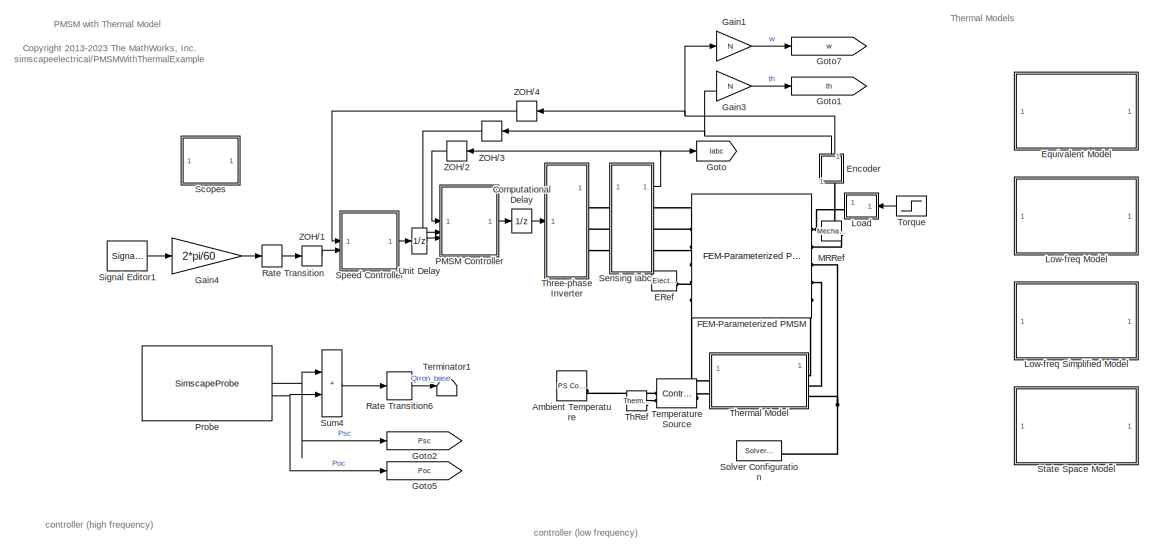
[diagram: root canvas - part 1/2, full width, top band]
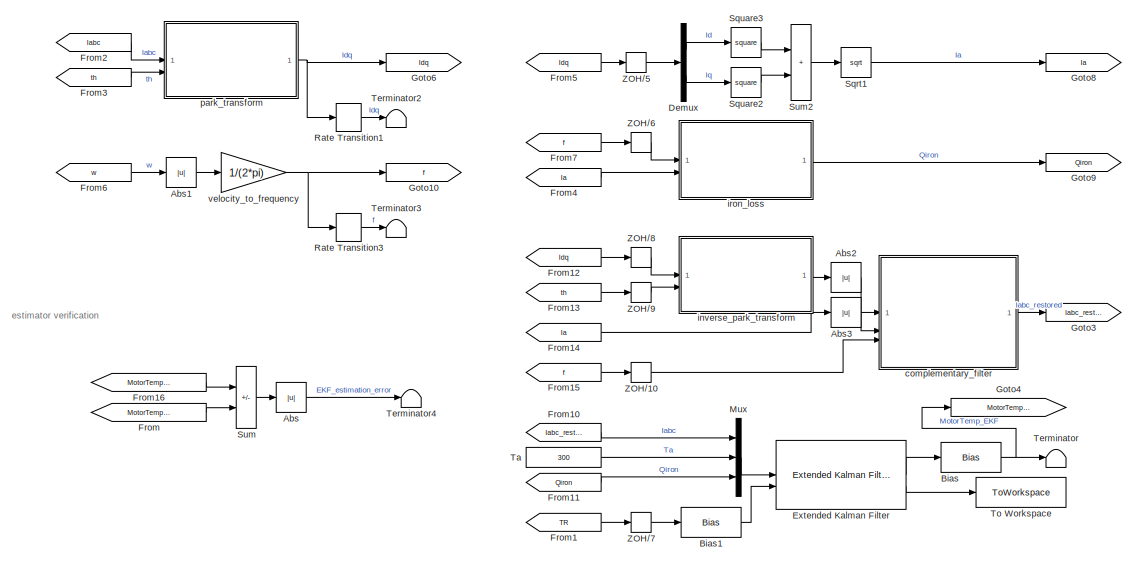
[diagram: root canvas - part 2/2, full width, bottom band]
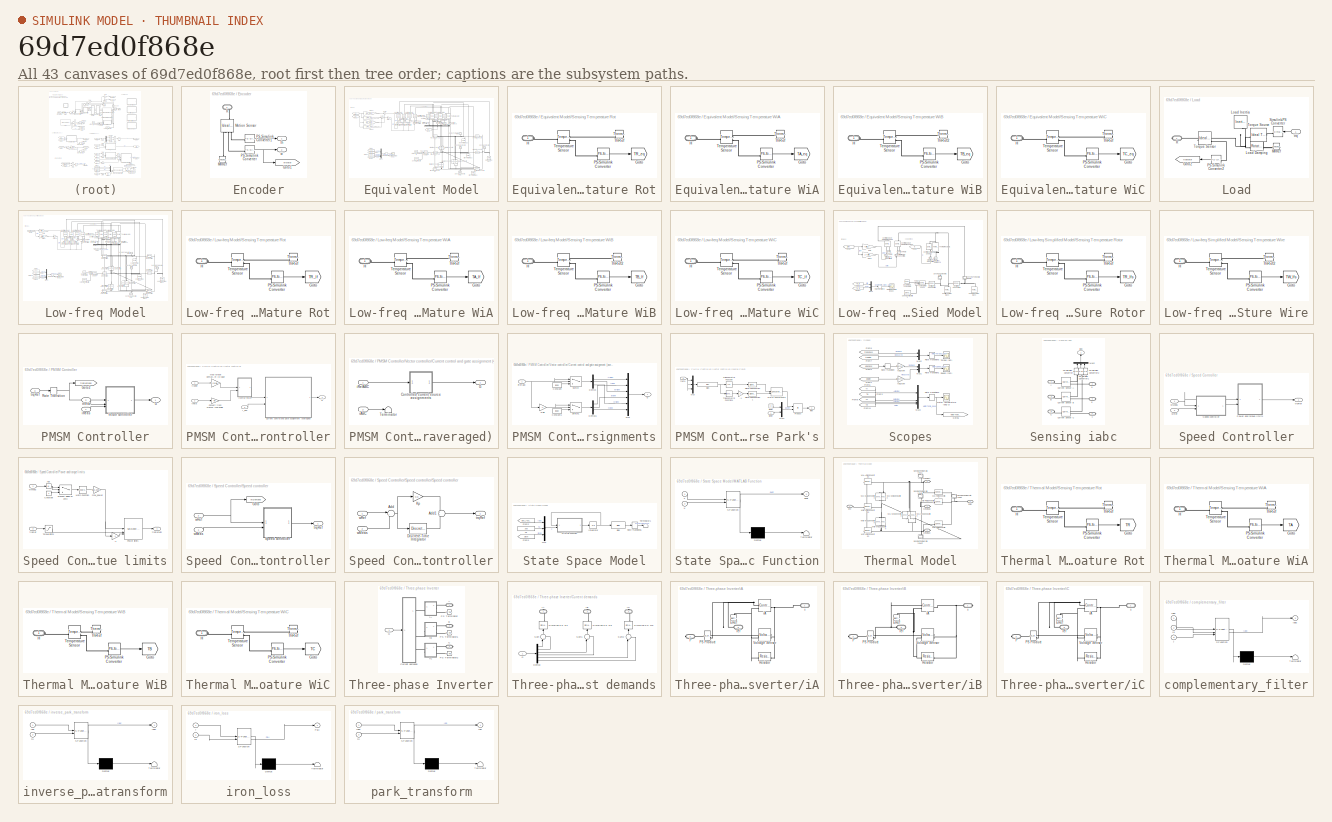
[diagram: thumbnail index - all 43 canvases of the model, root first then tree order]
MODEL slx_69d7ed0f868e
KIND model
CONFIG AbsTol = 1e-3
CONFIG EnableMultiTasking = off
CONFIG FixedStep = dt
CONFIG MaxStep = auto
CONFIG MinStep = auto
CONFIG RelTol = 1e-3
CONFIG SampleTimeConstraint = Unconstrained
CONFIG SolverName = VariableStepAuto
CONFIG StartTime = 0.0
CONFIG StopTime = 15
BLOCK [Abs] Abs
  SaturateOnIntegerOverflow = off
BLOCK [Abs] Abs1
  SaturateOnIntegerOverflow = off
BLOCK [Abs] Abs2
  SaturateOnIntegerOverflow = off
BLOCK [Abs] Abs3
  SaturateOnIntegerOverflow = off
BLOCK [Reference] Ambient Temperature  REF=fl_lib/Physical Signals/Sources/PS Constant
  SourceBlock = fl_lib/Physical Signals/Sources/PS Constant
  SourceType = PS Constant
BLOCK [Bias] Bias
  Bias = -273.15
  SaturateOnIntegerOverflow = off
BLOCK [Bias] Bias1
  Bias = 273.15
  SaturateOnIntegerOverflow = off
BLOCK [UnitDelay] Computational Delay
  HasFrameUpgradeWarning = on
  SampleTime = dt
BLOCK [Demux] Demux
  Outputs = 2
BLOCK [Reference] ERef  REF=fl_lib/Electrical/Electrical Elements/Electrical Reference
  SourceBlock = fl_lib/Electrical/Electrical Elements/Electrical Reference
  SourceType = Electrical Reference
BLOCK [SubSystem] Encoder
  NameLocation = left
BLOCK [Goto] Encoder/Goto1
  GotoTag = wMotor
  NameLocation = top
  TagVisibility = global
BLOCK [Reference] Encoder/MRRef  REF=fl_lib/Mechanical/Rotational Elements/Mechanical
Rotational Reference
  NameLocation = right
  SourceBlock = fl_lib/Mechanical/Rotational Elements/Mechanical\nRotational Reference
  SourceType = Mechanical\nRotational Reference
BLOCK [Reference] Encoder/Motion Sensor  REF=fl_lib/Mechanical/Mechanical Sensors/Ideal Rotational
Motion Sensor
  NameLocation = right
  SourceBlock = fl_lib/Mechanical/Mechanical Sensors/Ideal Rotational\nMotion Sensor
  SourceType = Ideal Rotational\nMotion Sensor
BLOCK [Reference] Encoder/PS-Simulink Converter  REF=nesl_utility/PS-Simulink
Converter
  SourceBlock = nesl_utility/PS-Simulink\nConverter
  SourceType = PS-Simulink\nConverter
BLOCK [Reference] Encoder/PS-Simulink Converter1  REF=nesl_utility/PS-Simulink
Converter
  SourceBlock = nesl_utility/PS-Simulink\nConverter
  SourceType = PS-Simulink\nConverter
BLOCK [PMIOPort] Encoder/R
  NameLocation = right
  Side = Left
BLOCK [Outport] Encoder/th
  VectorParamsAs1DForOutWhenUnconnected = off
BLOCK [Outport] Encoder/w
  Port = 2
  VectorParamsAs1DForOutWhenUnconnected = off
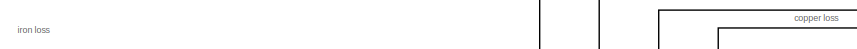
[diagram: Equivalent Model - part 1/2, top left region]
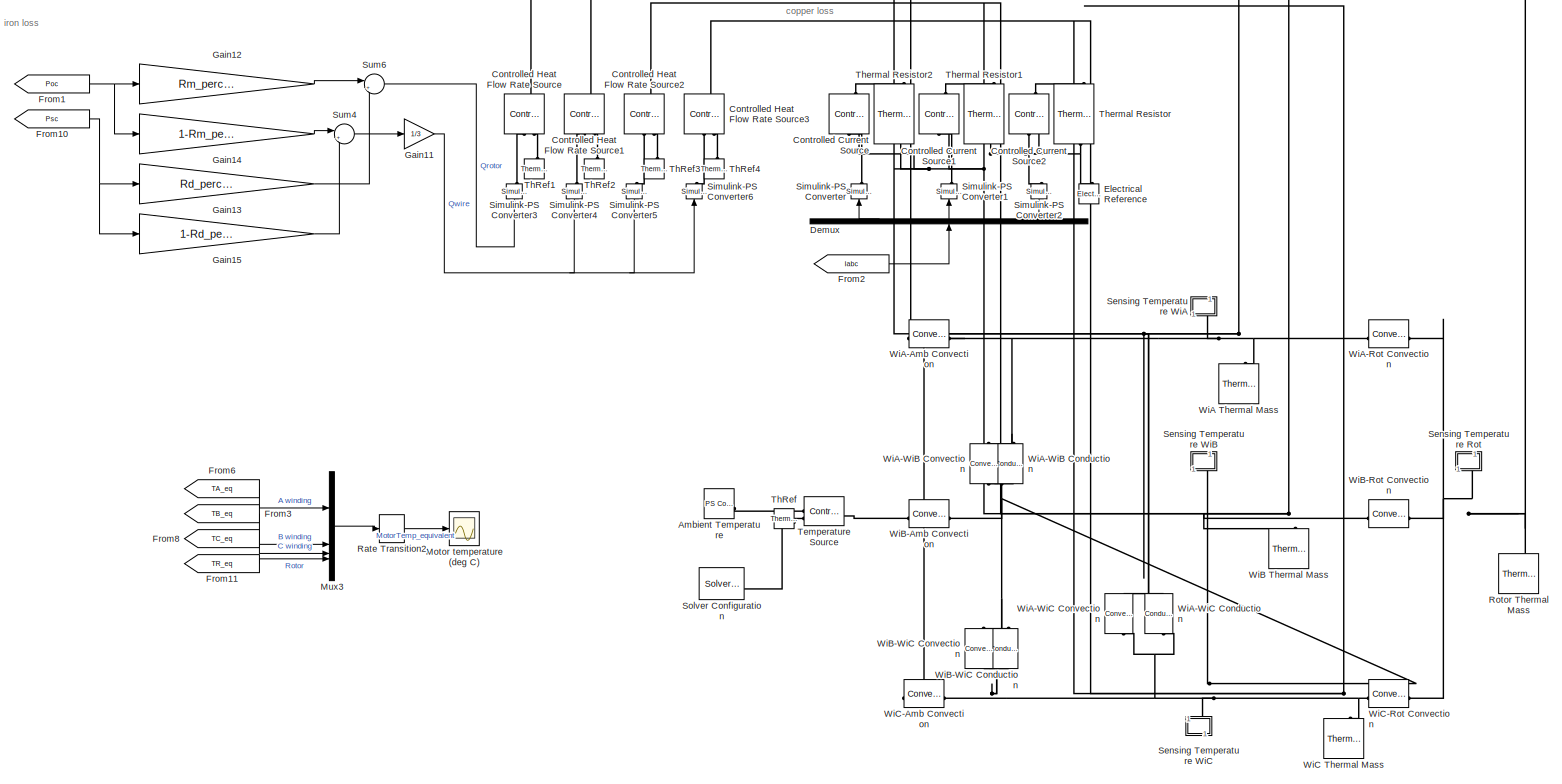
[diagram: Equivalent Model - part 2/2, most of the canvas]
BLOCK [SubSystem] Equivalent Model
  Tag = PublishSubsystem
BLOCK [Reference] Equivalent Model/Ambient Temperature  REF=fl_lib/Physical Signals/Sources/PS Constant
  SourceBlock = fl_lib/Physical Signals/Sources/PS Constant
  SourceType = PS Constant
BLOCK [Reference] Equivalent Model/Controlled Current Source  REF=fl_lib/Electrical/Electrical Sources/Controlled Current
Source
  NameLocation = left
  SourceBlock = fl_lib/Electrical/Electrical Sources/Controlled Current\nSource
  SourceType = Controlled Current\nSource
BLOCK [Reference] Equivalent Model/Controlled Current Source1  REF=fl_lib/Electrical/Electrical Sources/Controlled Current
Source
  NameLocation = left
  SourceBlock = fl_lib/Electrical/Electrical Sources/Controlled Current\nSource
  SourceType = Controlled Current\nSource
BLOCK [Reference] Equivalent Model/Controlled Current Source2  REF=fl_lib/Electrical/Electrical Sources/Controlled Current
Source
  NameLocation = left
  SourceBlock = fl_lib/Electrical/Electrical Sources/Controlled Current\nSource
  SourceType = Controlled Current\nSource
BLOCK [Reference] Equivalent Model/Controlled Heat Flow Rate Source  REF=fl_lib/Thermal/Thermal Sources/Controlled Heat Flow
Rate Source
  NameLocation = right
  SourceBlock = fl_lib/Thermal/Thermal Sources/Controlled Heat Flow\nRate Source
  SourceType = Controlled Heat Flow\nRate Source
BLOCK [Reference] Equivalent Model/Controlled Heat Flow Rate Source1  REF=fl_lib/Thermal/Thermal Sources/Controlled Heat Flow
Rate Source
  NameLocation = right
  SourceBlock = fl_lib/Thermal/Thermal Sources/Controlled Heat Flow\nRate Source
  SourceType = Controlled Heat Flow\nRate Source
BLOCK [Reference] Equivalent Model/Controlled Heat Flow Rate Source2  REF=fl_lib/Thermal/Thermal Sources/Controlled Heat Flow
Rate Source
  NameLocation = right
  SourceBlock = fl_lib/Thermal/Thermal Sources/Controlled Heat Flow\nRate Source
  SourceType = Controlled Heat Flow\nRate Source
BLOCK [Reference] Equivalent Model/Controlled Heat Flow Rate Source3  REF=fl_lib/Thermal/Thermal Sources/Controlled Heat Flow
Rate Source
  NameLocation = right
  SourceBlock = fl_lib/Thermal/Thermal Sources/Controlled Heat Flow\nRate Source
  SourceType = Controlled Heat Flow\nRate Source
BLOCK [Demux] Equivalent Model/Demux
  NameLocation = right
  Outputs = 3
BLOCK [Reference] Equivalent Model/Electrical Reference  REF=fl_lib/Electrical/Electrical Elements/Electrical Reference
  NameLocation = right
  SourceBlock = fl_lib/Electrical/Electrical Elements/Electrical Reference
  SourceType = Electrical Reference
BLOCK [From] Equivalent Model/From1
  GotoTag = Poc
  TagVisibility = global
BLOCK [From] Equivalent Model/From10
  GotoTag = Psc
  TagVisibility = global
BLOCK [From] Equivalent Model/From11
  GotoTag = TR_eq
  TagVisibility = global
BLOCK [From] Equivalent Model/From2
  GotoTag = Iabc
  TagVisibility = global
BLOCK [From] Equivalent Model/From3
  GotoTag = TB_eq
  TagVisibility = global
BLOCK [From] Equivalent Model/From6
  GotoTag = TA_eq
  TagVisibility = global
BLOCK [From] Equivalent Model/From8
  GotoTag = TC_eq
  TagVisibility = global
BLOCK [Gain] Equivalent Model/Gain11
  Gain = 1/3
BLOCK [Gain] Equivalent Model/Gain12
  Gain = Rm_percent_rotor/100
BLOCK [Gain] Equivalent Model/Gain13
  Gain = Rd_percent_rotor/100
BLOCK [Gain] Equivalent Model/Gain14
  Gain = 1-Rm_percent_rotor/100
BLOCK [Gain] Equivalent Model/Gain15
  Gain = 1-Rd_percent_rotor/100
BLOCK [Scope] Equivalent Model/Motor temperature (deg C)
  Floating = off
  NumInputPorts = 1
  ScopeSpecificationString = Simulink.scopes.TimeScopeBlockCfg('CurrentConfiguration', extmgr.ConfigurationSet(extmgr.Configuration('Core','General UI',true),extmgr.Configuration('Core','Source UI',true),extmgr.Configuration('Sources','WiredSimulink',true,'DataLoggingVariableName','ScopeData1','DataLoggingSaveFormat','StructureWithTime','DataLoggingMaxPoints','500000','DataLoggingDecimation','10','DataLoggingDecimateData',tru...<+1831ch>  <repeated x3 — deduplicated; at blocks: Motor temperature (deg C)>
BLOCK [Mux] Equivalent Model/Mux3
  DisplayOption = bar
BLOCK [RateTransition] Equivalent Model/Rate Transition2
  OutPortSampleTime = dt_display
BLOCK [Reference] Equivalent Model/Rotor Thermal Mass  REF=fl_lib/Thermal/Thermal Elements/Thermal Mass
  NameLocation = right
  SourceBlock = fl_lib/Thermal/Thermal Elements/Thermal Mass
  SourceType = Thermal Mass
BLOCK [SubSystem] Equivalent Model/Sensing Temperature Rot
  NameLocation = right
BLOCK [Goto] Equivalent Model/Sensing Temperature Rot/Goto
  GotoTag = TR_eq
  TagVisibility = global
BLOCK [PMIOPort] Equivalent Model/Sensing Temperature Rot/H
  Side = Left
BLOCK [Reference] Equivalent Model/Sensing Temperature Rot/PS-Simulink Converter  REF=nesl_utility/PS-Simulink
Converter
  SourceBlock = nesl_utility/PS-Simulink\nConverter
  SourceType = PS-Simulink\nConverter
BLOCK [Reference] Equivalent Model/Sensing Temperature Rot/Temperature Sensor  REF=fl_lib/Thermal/Thermal Sensors/Temperature Sensor
  SourceBlock = fl_lib/Thermal/Thermal Sensors/Temperature Sensor
  SourceType = Temperature Sensor
BLOCK [Reference] Equivalent Model/Sensing Temperature Rot/ThRef  REF=fl_lib/Thermal/Thermal Elements/Thermal Reference
  NameLocation = top
  SourceBlock = fl_lib/Thermal/Thermal Elements/Thermal Reference
  SourceType = Thermal Reference
BLOCK [SubSystem] Equivalent Model/Sensing Temperature WiA
  NameLocation = left
BLOCK [Goto] Equivalent Model/Sensing Temperature WiA/Goto
  GotoTag = TA_eq
  TagVisibility = global
BLOCK [PMIOPort] Equivalent Model/Sensing Temperature WiA/H
  Side = Left
BLOCK [Reference] Equivalent Model/Sensing Temperature WiA/PS-Simulink Converter  REF=nesl_utility/PS-Simulink
Converter
  SourceBlock = nesl_utility/PS-Simulink\nConverter
  SourceType = PS-Simulink\nConverter
BLOCK [Reference] Equivalent Model/Sensing Temperature WiA/Temperature Sensor  REF=fl_lib/Thermal/Thermal Sensors/Temperature Sensor
  SourceBlock = fl_lib/Thermal/Thermal Sensors/Temperature Sensor
  SourceType = Temperature Sensor
BLOCK [Reference] Equivalent Model/Sensing Temperature WiA/ThRef  REF=fl_lib/Thermal/Thermal Elements/Thermal Reference
  NameLocation = top
  SourceBlock = fl_lib/Thermal/Thermal Elements/Thermal Reference
  SourceType = Thermal Reference
BLOCK [SubSystem] Equivalent Model/Sensing Temperature WiB
  NameLocation = left
BLOCK [Goto] Equivalent Model/Sensing Temperature WiB/Goto
  GotoTag = TB_eq
  TagVisibility = global
BLOCK [PMIOPort] Equivalent Model/Sensing Temperature WiB/H
  Side = Left
BLOCK [Reference] Equivalent Model/Sensing Temperature WiB/PS-Simulink Converter  REF=nesl_utility/PS-Simulink
Converter
  SourceBlock = nesl_utility/PS-Simulink\nConverter
  SourceType = PS-Simulink\nConverter
BLOCK [Reference] Equivalent Model/Sensing Temperature WiB/Temperature Sensor  REF=fl_lib/Thermal/Thermal Sensors/Temperature Sensor
  SourceBlock = fl_lib/Thermal/Thermal Sensors/Temperature Sensor
  SourceType = Temperature Sensor
BLOCK [Reference] Equivalent Model/Sensing Temperature WiB/ThRef2  REF=fl_lib/Thermal/Thermal Elements/Thermal Reference
  NameLocation = top
  SourceBlock = fl_lib/Thermal/Thermal Elements/Thermal Reference
  SourceType = Thermal Reference
BLOCK [SubSystem] Equivalent Model/Sensing Temperature WiC
  NameLocation = left
BLOCK [Goto] Equivalent Model/Sensing Temperature WiC/Goto
  GotoTag = TC_eq
  TagVisibility = global
BLOCK [PMIOPort] Equivalent Model/Sensing Temperature WiC/H
  Side = Left
BLOCK [Reference] Equivalent Model/Sensing Temperature WiC/PS-Simulink Converter  REF=nesl_utility/PS-Simulink
Converter
  SourceBlock = nesl_utility/PS-Simulink\nConverter
  SourceType = PS-Simulink\nConverter
BLOCK [Reference] Equivalent Model/Sensing Temperature WiC/Temperature Sensor  REF=fl_lib/Thermal/Thermal Sensors/Temperature Sensor
  SourceBlock = fl_lib/Thermal/Thermal Sensors/Temperature Sensor
  SourceType = Temperature Sensor
BLOCK [Reference] Equivalent Model/Sensing Temperature WiC/ThRef  REF=fl_lib/Thermal/Thermal Elements/Thermal Reference
  NameLocation = top
  SourceBlock = fl_lib/Thermal/Thermal Elements/Thermal Reference
  SourceType = Thermal Reference
BLOCK [Reference] Equivalent Model/Simulink-PS Converter  REF=nesl_utility/Simulink-PS
Converter
  NameLocation = left
  SourceBlock = nesl_utility/Simulink-PS\nConverter
  SourceType = Simulink-PS\nConverter
BLOCK [Reference] Equivalent Model/Simulink-PS Converter1  REF=nesl_utility/Simulink-PS
Converter
  NameLocation = left
  SourceBlock = nesl_utility/Simulink-PS\nConverter
  SourceType = Simulink-PS\nConverter
BLOCK [Reference] Equivalent Model/Simulink-PS Converter2  REF=nesl_utility/Simulink-PS
Converter
  NameLocation = left
  SourceBlock = nesl_utility/Simulink-PS\nConverter
  SourceType = Simulink-PS\nConverter
BLOCK [Reference] Equivalent Model/Simulink-PS Converter3  REF=nesl_utility/Simulink-PS
Converter
  NameLocation = left
  SourceBlock = nesl_utility/Simulink-PS\nConverter
  SourceType = Simulink-PS\nConverter
BLOCK [Reference] Equivalent Model/Simulink-PS Converter4  REF=nesl_utility/Simulink-PS
Converter
  NameLocation = left
  SourceBlock = nesl_utility/Simulink-PS\nConverter
  SourceType = Simulink-PS\nConverter
BLOCK [Reference] Equivalent Model/Simulink-PS Converter5  REF=nesl_utility/Simulink-PS
Converter
  NameLocation = left
  SourceBlock = nesl_utility/Simulink-PS\nConverter
  SourceType = Simulink-PS\nConverter
BLOCK [Reference] Equivalent Model/Simulink-PS Converter6  REF=nesl_utility/Simulink-PS
Converter
  NameLocation = left
  SourceBlock = nesl_utility/Simulink-PS\nConverter
  SourceType = Simulink-PS\nConverter
BLOCK [Reference] Equivalent Model/Solver Configuration  REF=nesl_utility/Solver
Configuration
  SourceBlock = nesl_utility/Solver\nConfiguration
  SourceType = Solver\nConfiguration
BLOCK [Sum] Equivalent Model/Sum4
  Inputs = |++
BLOCK [Sum] Equivalent Model/Sum6
  Inputs = |++
BLOCK [Reference] Equivalent Model/Temperature Source  REF=fl_lib/Thermal/Thermal Sources/Controlled
Temperature Source
  SourceBlock = fl_lib/Thermal/Thermal Sources/Controlled\nTemperature Source
  SourceType = Controlled\nTemperature Source
BLOCK [Reference] Equivalent Model/ThRef  REF=fl_lib/Thermal/Thermal Elements/Thermal Reference
  SourceBlock = fl_lib/Thermal/Thermal Elements/Thermal Reference
  SourceType = Thermal Reference
BLOCK [Reference] Equivalent Model/ThRef1  REF=fl_lib/Thermal/Thermal Elements/Thermal Reference
  NameLocation = right
  SourceBlock = fl_lib/Thermal/Thermal Elements/Thermal Reference
  SourceType = Thermal Reference
BLOCK [Reference] Equivalent Model/ThRef2  REF=fl_lib/Thermal/Thermal Elements/Thermal Reference
  NameLocation = right
  SourceBlock = fl_lib/Thermal/Thermal Elements/Thermal Reference
  SourceType = Thermal Reference
BLOCK [Reference] Equivalent Model/ThRef3  REF=fl_lib/Thermal/Thermal Elements/Thermal Reference
  NameLocation = right
  SourceBlock = fl_lib/Thermal/Thermal Elements/Thermal Reference
  SourceType = Thermal Reference
BLOCK [Reference] Equivalent Model/ThRef4  REF=fl_lib/Thermal/Thermal Elements/Thermal Reference
  NameLocation = right
  SourceBlock = fl_lib/Thermal/Thermal Elements/Thermal Reference
  SourceType = Thermal Reference
BLOCK [Reference] Equivalent Model/Thermal Resistor  REF=fl_lib/Electrical/Electrical Elements/Thermal Resistor
  NameLocation = left
  SourceBlock = fl_lib/Electrical/Electrical Elements/Thermal Resistor
  SourceType = Thermal Resistor
BLOCK [Reference] Equivalent Model/Thermal Resistor1  REF=fl_lib/Electrical/Electrical Elements/Thermal Resistor
  NameLocation = left
  SourceBlock = fl_lib/Electrical/Electrical Elements/Thermal Resistor
  SourceType = Thermal Resistor
BLOCK [Reference] Equivalent Model/Thermal Resistor2  REF=fl_lib/Electrical/Electrical Elements/Thermal Resistor
  NameLocation = left
  SourceBlock = fl_lib/Electrical/Electrical Elements/Thermal Resistor
  SourceType = Thermal Resistor
BLOCK [Reference] Equivalent Model/WiA Thermal Mass  REF=fl_lib/Thermal/Thermal Elements/Thermal Mass
  SourceBlock = fl_lib/Thermal/Thermal Elements/Thermal Mass
  SourceType = Thermal Mass
BLOCK [Reference] Equivalent Model/WiA-Amb Convection  REF=fl_lib/Thermal/Thermal Elements/Convective Heat
Transfer
  SourceBlock = fl_lib/Thermal/Thermal Elements/Convective Heat\nTransfer
  SourceType = Convective Heat\nTransfer
BLOCK [Reference] Equivalent Model/WiA-Rot Convection  REF=fl_lib/Thermal/Thermal Elements/Convective Heat
Transfer
  NameLocation = top
  SourceBlock = fl_lib/Thermal/Thermal Elements/Convective Heat\nTransfer
  SourceType = Convective Heat\nTransfer
BLOCK [Reference] Equivalent Model/WiA-WiB Conduction  REF=fl_lib/Thermal/Thermal Elements/Conductive Heat
Transfer
  NameLocation = right
  SourceBlock = fl_lib/Thermal/Thermal Elements/Conductive Heat\nTransfer
  SourceType = Conductive Heat\nTransfer
BLOCK [Reference] Equivalent Model/WiA-WiB Convection  REF=fl_lib/Thermal/Thermal Elements/Convective Heat
Transfer
  NameLocation = left
  SourceBlock = fl_lib/Thermal/Thermal Elements/Convective Heat\nTransfer
  SourceType = Convective Heat\nTransfer
BLOCK [Reference] Equivalent Model/WiA-WiC Conduction  REF=fl_lib/Thermal/Thermal Elements/Conductive Heat
Transfer
  NameLocation = right
  SourceBlock = fl_lib/Thermal/Thermal Elements/Conductive Heat\nTransfer
  SourceType = Conductive Heat\nTransfer
BLOCK [Reference] Equivalent Model/WiA-WiC Convection  REF=fl_lib/Thermal/Thermal Elements/Convective Heat
Transfer
  NameLocation = right
  SourceBlock = fl_lib/Thermal/Thermal Elements/Convective Heat\nTransfer
  SourceType = Convective Heat\nTransfer
BLOCK [Reference] Equivalent Model/WiB Thermal Mass  REF=fl_lib/Thermal/Thermal Elements/Thermal Mass
  SourceBlock = fl_lib/Thermal/Thermal Elements/Thermal Mass
  SourceType = Thermal Mass
BLOCK [Reference] Equivalent Model/WiB-Amb Convection  REF=fl_lib/Thermal/Thermal Elements/Convective Heat
Transfer
  SourceBlock = fl_lib/Thermal/Thermal Elements/Convective Heat\nTransfer
  SourceType = Convective Heat\nTransfer
BLOCK [Reference] Equivalent Model/WiB-Rot Convection  REF=fl_lib/Thermal/Thermal Elements/Convective Heat
Transfer
  SourceBlock = fl_lib/Thermal/Thermal Elements/Convective Heat\nTransfer
  SourceType = Convective Heat\nTransfer
BLOCK [Reference] Equivalent Model/WiB-WiC Conduction  REF=fl_lib/Thermal/Thermal Elements/Conductive Heat
Transfer
  NameLocation = right
  SourceBlock = fl_lib/Thermal/Thermal Elements/Conductive Heat\nTransfer
  SourceType = Conductive Heat\nTransfer
BLOCK [Reference] Equivalent Model/WiB-WiC Convection  REF=fl_lib/Thermal/Thermal Elements/Convective Heat
Transfer
  NameLocation = left
  SourceBlock = fl_lib/Thermal/Thermal Elements/Convective Heat\nTransfer
  SourceType = Convective Heat\nTransfer
BLOCK [Reference] Equivalent Model/WiC Thermal Mass  REF=fl_lib/Thermal/Thermal Elements/Thermal Mass
  SourceBlock = fl_lib/Thermal/Thermal Elements/Thermal Mass
  SourceType = Thermal Mass
BLOCK [Reference] Equivalent Model/WiC-Amb Convection  REF=fl_lib/Thermal/Thermal Elements/Convective Heat
Transfer
  SourceBlock = fl_lib/Thermal/Thermal Elements/Convective Heat\nTransfer
  SourceType = Convective Heat\nTransfer
BLOCK [Reference] Equivalent Model/WiC-Rot Convection  REF=fl_lib/Thermal/Thermal Elements/Convective Heat
Transfer
  NameLocation = top
  SourceBlock = fl_lib/Thermal/Thermal Elements/Convective Heat\nTransfer
  SourceType = Convective Heat\nTransfer
BLOCK [Reference] Extended Kalman Filter  REF=sharedTrackingLibrary/Extended Kalman Filter
  LibrarySourceBlock = cstblocks/State Estimation/Extended Kalman Filter
  SourceBlock = sharedTrackingLibrary/Extended Kalman Filter
  SourceType = Extended Kalman Filter
BLOCK [Reference] FEM-Parameterized PMSM  REF=ee_lib/Electromechanical/Permanent Magnet/FEM-Parameterized
PMSM
  SourceBlock = ee_lib/Electromechanical/Permanent Magnet/FEM-Parameterized\nPMSM
  SourceType = FEM-Parameterized\nPMSM
BLOCK [From] From
  GotoTag = MotorTemp_base
  TagVisibility = global
BLOCK [From] From1
  GotoTag = TR
  TagVisibility = global
BLOCK [From] From10
  GotoTag = Iabc_restored
  TagVisibility = global
BLOCK [From] From11
  GotoTag = Qiron
  TagVisibility = global
BLOCK [From] From12
  GotoTag = Idq
  TagVisibility = global
BLOCK [From] From13
  GotoTag = th
  TagVisibility = global
BLOCK [From] From14
  GotoTag = Ia
  TagVisibility = global
BLOCK [From] From15
  GotoTag = f
  TagVisibility = global
BLOCK [From] From16
  GotoTag = MotorTemp_EKF
  TagVisibility = global
BLOCK [From] From2
  GotoTag = Iabc
  TagVisibility = global
BLOCK [From] From3
  GotoTag = th
  TagVisibility = global
BLOCK [From] From4
  GotoTag = Ia
  TagVisibility = global
BLOCK [From] From5
  GotoTag = Idq
  TagVisibility = global
BLOCK [From] From6
  GotoTag = w
  TagVisibility = global
BLOCK [From] From7
  GotoTag = f
  TagVisibility = global
BLOCK [Gain] Gain1
  Gain = N
BLOCK [Gain] Gain3
  Gain = N
BLOCK [Gain] Gain4
  Gain = 2*pi/60
BLOCK [Goto] Goto
  GotoTag = Iabc
  TagVisibility = global
BLOCK [Goto] Goto1
  GotoTag = th
  TagVisibility = global
BLOCK [Goto] Goto10
  GotoTag = f
  TagVisibility = global
BLOCK [Goto] Goto2
  GotoTag = Psc
  TagVisibility = global
BLOCK [Goto] Goto3
  GotoTag = Iabc_restored
  TagVisibility = global
BLOCK [Goto] Goto4
  GotoTag = MotorTemp_EKF
  TagVisibility = global
BLOCK [Goto] Goto5
  GotoTag = Poc
  TagVisibility = global
BLOCK [Goto] Goto6
  GotoTag = Idq
  TagVisibility = global
BLOCK [Goto] Goto7
  GotoTag = w
  TagVisibility = global
BLOCK [Goto] Goto8
  GotoTag = Ia
  TagVisibility = global
BLOCK [Goto] Goto9
  GotoTag = Qiron
  TagVisibility = global
BLOCK [SubSystem] Load
BLOCK [Goto] Load/Goto2
  GotoTag = trqMotor
  TagVisibility = global
BLOCK [Reference] Load/Load Damping  REF=fl_lib/Mechanical/Rotational Elements/Rotational Damper
  SourceBlock = fl_lib/Mechanical/Rotational Elements/Rotational Damper
  SourceType = Rotational Damper
BLOCK [Reference] Load/Load Inertia  REF=fl_lib/Mechanical/Rotational Elements/Inertia
  NameLocation = left
  SourceBlock = fl_lib/Mechanical/Rotational Elements/Inertia
  SourceType = Inertia
BLOCK [Reference] Load/MRRef  REF=fl_lib/Mechanical/Rotational Elements/Mechanical
Rotational Reference
  SourceBlock = fl_lib/Mechanical/Rotational Elements/Mechanical\nRotational Reference
  SourceType = Mechanical\nRotational Reference
BLOCK [Reference] Load/PS-Simulink Converter2  REF=nesl_utility/PS-Simulink
Converter
  NameLocation = top
  SourceBlock = nesl_utility/PS-Simulink\nConverter
  SourceType = PS-Simulink\nConverter
BLOCK [PMIOPort] Load/R
  Side = Right
BLOCK [Reference] Load/Simulink-PS Converter  REF=nesl_utility/Simulink-PS
Converter
  SourceBlock = nesl_utility/Simulink-PS\nConverter
  SourceType = Simulink-PS\nConverter
BLOCK [Reference] Load/Torque Sensor  REF=fl_lib/Mechanical/Mechanical Sensors/Ideal Torque Sensor
  SourceBlock = fl_lib/Mechanical/Mechanical Sensors/Ideal Torque Sensor
  SourceType = Ideal Torque Sensor
BLOCK [Reference] Load/Torque Source  REF=fl_lib/Mechanical/Mechanical Sources/Ideal Torque Source
  NameLocation = top
  SourceBlock = fl_lib/Mechanical/Mechanical Sources/Ideal Torque Source
  SourceType = Ideal Torque Source
BLOCK [Inport] Load/trq
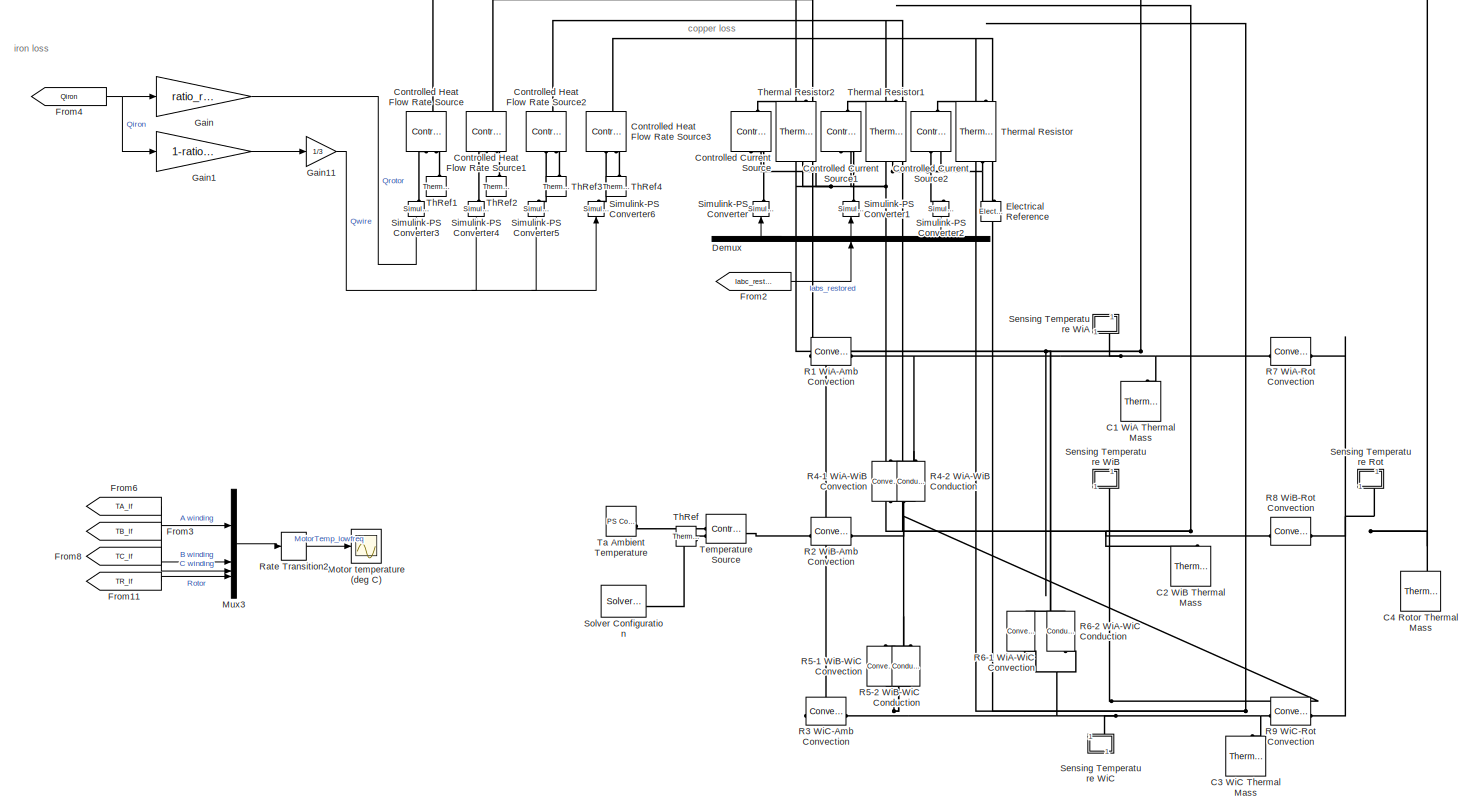
[diagram: Low-freq Model - part 1/1, most of the canvas]
BLOCK [SubSystem] Low-freq Model
  Tag = PublishSubsystem
BLOCK [Reference] Low-freq Model/C1 WiA Thermal Mass  REF=fl_lib/Thermal/Thermal Elements/Thermal Mass
  SourceBlock = fl_lib/Thermal/Thermal Elements/Thermal Mass
  SourceType = Thermal Mass
BLOCK [Reference] Low-freq Model/C2 WiB Thermal Mass  REF=fl_lib/Thermal/Thermal Elements/Thermal Mass
  SourceBlock = fl_lib/Thermal/Thermal Elements/Thermal Mass
  SourceType = Thermal Mass
BLOCK [Reference] Low-freq Model/C3 WiC Thermal Mass  REF=fl_lib/Thermal/Thermal Elements/Thermal Mass
  SourceBlock = fl_lib/Thermal/Thermal Elements/Thermal Mass
  SourceType = Thermal Mass
BLOCK [Reference] Low-freq Model/C4 Rotor Thermal Mass  REF=fl_lib/Thermal/Thermal Elements/Thermal Mass
  NameLocation = right
  SourceBlock = fl_lib/Thermal/Thermal Elements/Thermal Mass
  SourceType = Thermal Mass
BLOCK [Reference] Low-freq Model/Controlled Current Source  REF=fl_lib/Electrical/Electrical Sources/Controlled Current
Source
  NameLocation = left
  SourceBlock = fl_lib/Electrical/Electrical Sources/Controlled Current\nSource
  SourceType = Controlled Current\nSource
BLOCK [Reference] Low-freq Model/Controlled Current Source1  REF=fl_lib/Electrical/Electrical Sources/Controlled Current
Source
  NameLocation = left
  SourceBlock = fl_lib/Electrical/Electrical Sources/Controlled Current\nSource
  SourceType = Controlled Current\nSource
BLOCK [Reference] Low-freq Model/Controlled Current Source2  REF=fl_lib/Electrical/Electrical Sources/Controlled Current
Source
  NameLocation = left
  SourceBlock = fl_lib/Electrical/Electrical Sources/Controlled Current\nSource
  SourceType = Controlled Current\nSource
BLOCK [Reference] Low-freq Model/Controlled Heat Flow Rate Source  REF=fl_lib/Thermal/Thermal Sources/Controlled Heat Flow
Rate Source
  NameLocation = right
  SourceBlock = fl_lib/Thermal/Thermal Sources/Controlled Heat Flow\nRate Source
  SourceType = Controlled Heat Flow\nRate Source
BLOCK [Reference] Low-freq Model/Controlled Heat Flow Rate Source1  REF=fl_lib/Thermal/Thermal Sources/Controlled Heat Flow
Rate Source
  NameLocation = right
  SourceBlock = fl_lib/Thermal/Thermal Sources/Controlled Heat Flow\nRate Source
  SourceType = Controlled Heat Flow\nRate Source
BLOCK [Reference] Low-freq Model/Controlled Heat Flow Rate Source2  REF=fl_lib/Thermal/Thermal Sources/Controlled Heat Flow
Rate Source
  NameLocation = right
  SourceBlock = fl_lib/Thermal/Thermal Sources/Controlled Heat Flow\nRate Source
  SourceType = Controlled Heat Flow\nRate Source
BLOCK [Reference] Low-freq Model/Controlled Heat Flow Rate Source3  REF=fl_lib/Thermal/Thermal Sources/Controlled Heat Flow
Rate Source
  NameLocation = right
  SourceBlock = fl_lib/Thermal/Thermal Sources/Controlled Heat Flow\nRate Source
  SourceType = Controlled Heat Flow\nRate Source
BLOCK [Demux] Low-freq Model/Demux
  NameLocation = right
  Outputs = 3
BLOCK [Reference] Low-freq Model/Electrical Reference  REF=fl_lib/Electrical/Electrical Elements/Electrical Reference
  NameLocation = right
  SourceBlock = fl_lib/Electrical/Electrical Elements/Electrical Reference
  SourceType = Electrical Reference
BLOCK [From] Low-freq Model/From11
  GotoTag = TR_lf
  TagVisibility = global
BLOCK [From] Low-freq Model/From2
  GotoTag = Iabc_restored
  TagVisibility = global
BLOCK [From] Low-freq Model/From3
  GotoTag = TB_lf
  TagVisibility = global
BLOCK [From] Low-freq Model/From4
  GotoTag = Qiron
  TagVisibility = global
BLOCK [From] Low-freq Model/From6
  GotoTag = TA_lf
  TagVisibility = global
BLOCK [From] Low-freq Model/From8
  GotoTag = TC_lf
  TagVisibility = global
BLOCK [Gain] Low-freq Model/Gain
  Gain = ratio_rotor
BLOCK [Gain] Low-freq Model/Gain1
  Gain = 1-ratio_rotor
BLOCK [Gain] Low-freq Model/Gain11
  Gain = 1/3
BLOCK [Scope] Low-freq Model/Motor temperature (deg C)
  Floating = off
  NumInputPorts = 1
BLOCK [Mux] Low-freq Model/Mux3
  DisplayOption = bar
BLOCK [Reference] Low-freq Model/R1 WiA-Amb Convection  REF=fl_lib/Thermal/Thermal Elements/Convective Heat
Transfer
  SourceBlock = fl_lib/Thermal/Thermal Elements/Convective Heat\nTransfer
  SourceType = Convective Heat\nTransfer
BLOCK [Reference] Low-freq Model/R2 WiB-Amb Convection  REF=fl_lib/Thermal/Thermal Elements/Convective Heat
Transfer
  SourceBlock = fl_lib/Thermal/Thermal Elements/Convective Heat\nTransfer
  SourceType = Convective Heat\nTransfer
BLOCK [Reference] Low-freq Model/R3 WiC-Amb Convection  REF=fl_lib/Thermal/Thermal Elements/Convective Heat
Transfer
  SourceBlock = fl_lib/Thermal/Thermal Elements/Convective Heat\nTransfer
  SourceType = Convective Heat\nTransfer
BLOCK [Reference] Low-freq Model/R4-1 WiA-WiB Convection  REF=fl_lib/Thermal/Thermal Elements/Convective Heat
Transfer
  NameLocation = left
  SourceBlock = fl_lib/Thermal/Thermal Elements/Convective Heat\nTransfer
  SourceType = Convective Heat\nTransfer
BLOCK [Reference] Low-freq Model/R4-2 WiA-WiB Conduction  REF=fl_lib/Thermal/Thermal Elements/Conductive Heat
Transfer
  NameLocation = right
  SourceBlock = fl_lib/Thermal/Thermal Elements/Conductive Heat\nTransfer
  SourceType = Conductive Heat\nTransfer
BLOCK [Reference] Low-freq Model/R5-1 WiB-WiC Convection  REF=fl_lib/Thermal/Thermal Elements/Convective Heat
Transfer
  NameLocation = left
  SourceBlock = fl_lib/Thermal/Thermal Elements/Convective Heat\nTransfer
  SourceType = Convective Heat\nTransfer
BLOCK [Reference] Low-freq Model/R5-2 WiB-WiC Conduction  REF=fl_lib/Thermal/Thermal Elements/Conductive Heat
Transfer
  NameLocation = right
  SourceBlock = fl_lib/Thermal/Thermal Elements/Conductive Heat\nTransfer
  SourceType = Conductive Heat\nTransfer
BLOCK [Reference] Low-freq Model/R6-1 WiA-WiC Convection  REF=fl_lib/Thermal/Thermal Elements/Convective Heat
Transfer
  NameLocation = left
  SourceBlock = fl_lib/Thermal/Thermal Elements/Convective Heat\nTransfer
  SourceType = Convective Heat\nTransfer
BLOCK [Reference] Low-freq Model/R6-2 WiA-WiC Conduction  REF=fl_lib/Thermal/Thermal Elements/Conductive Heat
Transfer
  NameLocation = right
  SourceBlock = fl_lib/Thermal/Thermal Elements/Conductive Heat\nTransfer
  SourceType = Conductive Heat\nTransfer
BLOCK [Reference] Low-freq Model/R7 WiA-Rot Convection  REF=fl_lib/Thermal/Thermal Elements/Convective Heat
Transfer
  NameLocation = top
  SourceBlock = fl_lib/Thermal/Thermal Elements/Convective Heat\nTransfer
  SourceType = Convective Heat\nTransfer
BLOCK [Reference] Low-freq Model/R8 WiB-Rot Convection  REF=fl_lib/Thermal/Thermal Elements/Convective Heat
Transfer
  SourceBlock = fl_lib/Thermal/Thermal Elements/Convective Heat\nTransfer
  SourceType = Convective Heat\nTransfer
BLOCK [Reference] Low-freq Model/R9 WiC-Rot Convection  REF=fl_lib/Thermal/Thermal Elements/Convective Heat
Transfer
  NameLocation = top
  SourceBlock = fl_lib/Thermal/Thermal Elements/Convective Heat\nTransfer
  SourceType = Convective Heat\nTransfer
BLOCK [RateTransition] Low-freq Model/Rate Transition2
  OutPortSampleTime = dt_display
BLOCK [SubSystem] Low-freq Model/Sensing Temperature Rot
  NameLocation = right
BLOCK [Goto] Low-freq Model/Sensing Temperature Rot/Goto
  GotoTag = TR_lf
  TagVisibility = global
BLOCK [PMIOPort] Low-freq Model/Sensing Temperature Rot/H
  Side = Left
BLOCK [Reference] Low-freq Model/Sensing Temperature Rot/PS-Simulink Converter  REF=nesl_utility/PS-Simulink
Converter
  SourceBlock = nesl_utility/PS-Simulink\nConverter
  SourceType = PS-Simulink\nConverter
BLOCK [Reference] Low-freq Model/Sensing Temperature Rot/Temperature Sensor  REF=fl_lib/Thermal/Thermal Sensors/Temperature Sensor
  SourceBlock = fl_lib/Thermal/Thermal Sensors/Temperature Sensor
  SourceType = Temperature Sensor
BLOCK [Reference] Low-freq Model/Sensing Temperature Rot/ThRef  REF=fl_lib/Thermal/Thermal Elements/Thermal Reference
  NameLocation = top
  SourceBlock = fl_lib/Thermal/Thermal Elements/Thermal Reference
  SourceType = Thermal Reference
BLOCK [SubSystem] Low-freq Model/Sensing Temperature WiA
  NameLocation = left
BLOCK [Goto] Low-freq Model/Sensing Temperature WiA/Goto
  GotoTag = TA_lf
  TagVisibility = global
BLOCK [PMIOPort] Low-freq Model/Sensing Temperature WiA/H
  Side = Left
BLOCK [Reference] Low-freq Model/Sensing Temperature WiA/PS-Simulink Converter  REF=nesl_utility/PS-Simulink
Converter
  SourceBlock = nesl_utility/PS-Simulink\nConverter
  SourceType = PS-Simulink\nConverter
BLOCK [Reference] Low-freq Model/Sensing Temperature WiA/Temperature Sensor  REF=fl_lib/Thermal/Thermal Sensors/Temperature Sensor
  SourceBlock = fl_lib/Thermal/Thermal Sensors/Temperature Sensor
  SourceType = Temperature Sensor
BLOCK [Reference] Low-freq Model/Sensing Temperature WiA/ThRef  REF=fl_lib/Thermal/Thermal Elements/Thermal Reference
  NameLocation = top
  SourceBlock = fl_lib/Thermal/Thermal Elements/Thermal Reference
  SourceType = Thermal Reference
BLOCK [SubSystem] Low-freq Model/Sensing Temperature WiB
  NameLocation = left
BLOCK [Goto] Low-freq Model/Sensing Temperature WiB/Goto
  GotoTag = TB_lf
  TagVisibility = global
BLOCK [PMIOPort] Low-freq Model/Sensing Temperature WiB/H
  Side = Left
BLOCK [Reference] Low-freq Model/Sensing Temperature WiB/PS-Simulink Converter  REF=nesl_utility/PS-Simulink
Converter
  SourceBlock = nesl_utility/PS-Simulink\nConverter
  SourceType = PS-Simulink\nConverter
BLOCK [Reference] Low-freq Model/Sensing Temperature WiB/Temperature Sensor  REF=fl_lib/Thermal/Thermal Sensors/Temperature Sensor
  SourceBlock = fl_lib/Thermal/Thermal Sensors/Temperature Sensor
  SourceType = Temperature Sensor
BLOCK [Reference] Low-freq Model/Sensing Temperature WiB/ThRef2  REF=fl_lib/Thermal/Thermal Elements/Thermal Reference
  NameLocation = top
  SourceBlock = fl_lib/Thermal/Thermal Elements/Thermal Reference
  SourceType = Thermal Reference
BLOCK [SubSystem] Low-freq Model/Sensing Temperature WiC
  NameLocation = left
BLOCK [Goto] Low-freq Model/Sensing Temperature WiC/Goto
  GotoTag = TC_lf
  TagVisibility = global
BLOCK [PMIOPort] Low-freq Model/Sensing Temperature WiC/H
  Side = Left
BLOCK [Reference] Low-freq Model/Sensing Temperature WiC/PS-Simulink Converter  REF=nesl_utility/PS-Simulink
Converter
  SourceBlock = nesl_utility/PS-Simulink\nConverter
  SourceType = PS-Simulink\nConverter
BLOCK [Reference] Low-freq Model/Sensing Temperature WiC/Temperature Sensor  REF=fl_lib/Thermal/Thermal Sensors/Temperature Sensor
  SourceBlock = fl_lib/Thermal/Thermal Sensors/Temperature Sensor
  SourceType = Temperature Sensor
BLOCK [Reference] Low-freq Model/Sensing Temperature WiC/ThRef  REF=fl_lib/Thermal/Thermal Elements/Thermal Reference
  NameLocation = top
  SourceBlock = fl_lib/Thermal/Thermal Elements/Thermal Reference
  SourceType = Thermal Reference
BLOCK [Reference] Low-freq Model/Simulink-PS Converter  REF=nesl_utility/Simulink-PS
Converter
  NameLocation = left
  SourceBlock = nesl_utility/Simulink-PS\nConverter
  SourceType = Simulink-PS\nConverter
BLOCK [Reference] Low-freq Model/Simulink-PS Converter1  REF=nesl_utility/Simulink-PS
Converter
  NameLocation = left
  SourceBlock = nesl_utility/Simulink-PS\nConverter
  SourceType = Simulink-PS\nConverter
BLOCK [Reference] Low-freq Model/Simulink-PS Converter2  REF=nesl_utility/Simulink-PS
Converter
  NameLocation = left
  SourceBlock = nesl_utility/Simulink-PS\nConverter
  SourceType = Simulink-PS\nConverter
BLOCK [Reference] Low-freq Model/Simulink-PS Converter3  REF=nesl_utility/Simulink-PS
Converter
  NameLocation = left
  SourceBlock = nesl_utility/Simulink-PS\nConverter
  SourceType = Simulink-PS\nConverter
BLOCK [Reference] Low-freq Model/Simulink-PS Converter4  REF=nesl_utility/Simulink-PS
Converter
  NameLocation = left
  SourceBlock = nesl_utility/Simulink-PS\nConverter
  SourceType = Simulink-PS\nConverter
BLOCK [Reference] Low-freq Model/Simulink-PS Converter5  REF=nesl_utility/Simulink-PS
Converter
  NameLocation = left
  SourceBlock = nesl_utility/Simulink-PS\nConverter
  SourceType = Simulink-PS\nConverter
BLOCK [Reference] Low-freq Model/Simulink-PS Converter6  REF=nesl_utility/Simulink-PS
Converter
  NameLocation = left
  SourceBlock = nesl_utility/Simulink-PS\nConverter
  SourceType = Simulink-PS\nConverter
BLOCK [Reference] Low-freq Model/Solver Configuration  REF=nesl_utility/Solver
Configuration
  SourceBlock = nesl_utility/Solver\nConfiguration
  SourceType = Solver\nConfiguration
BLOCK [Reference] Low-freq Model/Ta Ambient Temperature  REF=fl_lib/Physical Signals/Sources/PS Constant
  SourceBlock = fl_lib/Physical Signals/Sources/PS Constant
  SourceType = PS Constant
BLOCK [Reference] Low-freq Model/Temperature Source  REF=fl_lib/Thermal/Thermal Sources/Controlled
Temperature Source
  SourceBlock = fl_lib/Thermal/Thermal Sources/Controlled\nTemperature Source
  SourceType = Controlled\nTemperature Source
BLOCK [Reference] Low-freq Model/ThRef  REF=fl_lib/Thermal/Thermal Elements/Thermal Reference
  SourceBlock = fl_lib/Thermal/Thermal Elements/Thermal Reference
  SourceType = Thermal Reference
BLOCK [Reference] Low-freq Model/ThRef1  REF=fl_lib/Thermal/Thermal Elements/Thermal Reference
  NameLocation = right
  SourceBlock = fl_lib/Thermal/Thermal Elements/Thermal Reference
  SourceType = Thermal Reference
BLOCK [Reference] Low-freq Model/ThRef2  REF=fl_lib/Thermal/Thermal Elements/Thermal Reference
  NameLocation = right
  SourceBlock = fl_lib/Thermal/Thermal Elements/Thermal Reference
  SourceType = Thermal Reference
BLOCK [Reference] Low-freq Model/ThRef3  REF=fl_lib/Thermal/Thermal Elements/Thermal Reference
  NameLocation = right
  SourceBlock = fl_lib/Thermal/Thermal Elements/Thermal Reference
  SourceType = Thermal Reference
BLOCK [Reference] Low-freq Model/ThRef4  REF=fl_lib/Thermal/Thermal Elements/Thermal Reference
  NameLocation = right
  SourceBlock = fl_lib/Thermal/Thermal Elements/Thermal Reference
  SourceType = Thermal Reference
BLOCK [Reference] Low-freq Model/Thermal Resistor  REF=fl_lib/Electrical/Electrical Elements/Thermal Resistor
  NameLocation = left
  SourceBlock = fl_lib/Electrical/Electrical Elements/Thermal Resistor
  SourceType = Thermal Resistor
BLOCK [Reference] Low-freq Model/Thermal Resistor1  REF=fl_lib/Electrical/Electrical Elements/Thermal Resistor
  NameLocation = left
  SourceBlock = fl_lib/Electrical/Electrical Elements/Thermal Resistor
  SourceType = Thermal Resistor
BLOCK [Reference] Low-freq Model/Thermal Resistor2  REF=fl_lib/Electrical/Electrical Elements/Thermal Resistor
  NameLocation = left
  SourceBlock = fl_lib/Electrical/Electrical Elements/Thermal Resistor
  SourceType = Thermal Resistor
BLOCK [SubSystem] Low-freq Simplified Model
  Tag = PublishSubsystem
BLOCK [Reference] Low-freq Simplified Model/C1 Wire Thermal Mass  REF=fl_lib/Thermal/Thermal Elements/Thermal Mass
  SourceBlock = fl_lib/Thermal/Thermal Elements/Thermal Mass
  SourceType = Thermal Mass
BLOCK [Reference] Low-freq Simplified Model/C2 Rotor Thermal Mass  REF=fl_lib/Thermal/Thermal Elements/Thermal Mass
  SourceBlock = fl_lib/Thermal/Thermal Elements/Thermal Mass
  SourceType = Thermal Mass
BLOCK [Reference] Low-freq Simplified Model/Controlled Current Source1  REF=fl_lib/Electrical/Electrical Sources/Controlled Current
Source
  NameLocation = left
  SourceBlock = fl_lib/Electrical/Electrical Sources/Controlled Current\nSource
  SourceType = Controlled Current\nSource
BLOCK [Reference] Low-freq Simplified Model/Controlled Heat Flow Rate Source  REF=fl_lib/Thermal/Thermal Sources/Controlled Heat Flow
Rate Source
  NameLocation = right
  SourceBlock = fl_lib/Thermal/Thermal Sources/Controlled Heat Flow\nRate Source
  SourceType = Controlled Heat Flow\nRate Source
BLOCK [Reference] Low-freq Simplified Model/Controlled Heat Flow Rate Source2  REF=fl_lib/Thermal/Thermal Sources/Controlled Heat Flow
Rate Source
  NameLocation = right
  SourceBlock = fl_lib/Thermal/Thermal Sources/Controlled Heat Flow\nRate Source
  SourceType = Controlled Heat Flow\nRate Source
BLOCK [Reference] Low-freq Simplified Model/Electrical Reference  REF=fl_lib/Electrical/Electrical Elements/Electrical Reference
  NameLocation = right
  SourceBlock = fl_lib/Electrical/Electrical Elements/Electrical Reference
  SourceType = Electrical Reference
BLOCK [From] Low-freq Simplified Model/From11
  GotoTag = TR_lfs
  TagVisibility = global
BLOCK [From] Low-freq Simplified Model/From2
  GotoTag = Ia
  TagVisibility = global
BLOCK [From] Low-freq Simplified Model/From3
  GotoTag = Qiron
  TagVisibility = global
BLOCK [From] Low-freq Simplified Model/From6
  GotoTag = TW_lfs
  TagVisibility = global
BLOCK [Gain] Low-freq Simplified Model/Gain
  Gain = ratio_rotor
BLOCK [Gain] Low-freq Simplified Model/Gain1
  Gain = 1-ratio_rotor
BLOCK [Scope] Low-freq Simplified Model/Motor temperature (deg C)
  Floating = off
  NumInputPorts = 1
BLOCK [Mux] Low-freq Simplified Model/Mux3
  DisplayOption = bar
  Inputs = 2
BLOCK [Reference] Low-freq Simplified Model/R1 WiB-Amb Convection  REF=fl_lib/Thermal/Thermal Elements/Convective Heat
Transfer
  SourceBlock = fl_lib/Thermal/Thermal Elements/Convective Heat\nTransfer
  SourceType = Convective Heat\nTransfer
BLOCK [Reference] Low-freq Simplified Model/R2 Wi-Rot Convection  REF=fl_lib/Thermal/Thermal Elements/Convective Heat
Transfer
  SourceBlock = fl_lib/Thermal/Thermal Elements/Convective Heat\nTransfer
  SourceType = Convective Heat\nTransfer
BLOCK [RateTransition] Low-freq Simplified Model/Rate Transition2
  OutPortSampleTime = dt_display
BLOCK [SubSystem] Low-freq Simplified Model/Sensing Temperature Rotor
  NameLocation = top
BLOCK [Goto] Low-freq Simplified Model/Sensing Temperature Rotor/Goto
  GotoTag = TR_lfs
  TagVisibility = global
BLOCK [PMIOPort] Low-freq Simplified Model/Sensing Temperature Rotor/H
  Side = Left
BLOCK [Reference] Low-freq Simplified Model/Sensing Temperature Rotor/PS-Simulink Converter  REF=nesl_utility/PS-Simulink
Converter
  SourceBlock = nesl_utility/PS-Simulink\nConverter
  SourceType = PS-Simulink\nConverter
BLOCK [Reference] Low-freq Simplified Model/Sensing Temperature Rotor/Temperature Sensor  REF=fl_lib/Thermal/Thermal Sensors/Temperature Sensor
  SourceBlock = fl_lib/Thermal/Thermal Sensors/Temperature Sensor
  SourceType = Temperature Sensor
BLOCK [Reference] Low-freq Simplified Model/Sensing Temperature Rotor/ThRef  REF=fl_lib/Thermal/Thermal Elements/Thermal Reference
  NameLocation = top
  SourceBlock = fl_lib/Thermal/Thermal Elements/Thermal Reference
  SourceType = Thermal Reference
BLOCK [SubSystem] Low-freq Simplified Model/Sensing Temperature Wire
  NameLocation = top
BLOCK [Goto] Low-freq Simplified Model/Sensing Temperature Wire/Goto
  GotoTag = TW_lfs
  TagVisibility = global
BLOCK [PMIOPort] Low-freq Simplified Model/Sensing Temperature Wire/H
  Side = Left
BLOCK [Reference] Low-freq Simplified Model/Sensing Temperature Wire/PS-Simulink Converter  REF=nesl_utility/PS-Simulink
Converter
  SourceBlock = nesl_utility/PS-Simulink\nConverter
  SourceType = PS-Simulink\nConverter
BLOCK [Reference] Low-freq Simplified Model/Sensing Temperature Wire/Temperature Sensor  REF=fl_lib/Thermal/Thermal Sensors/Temperature Sensor
  SourceBlock = fl_lib/Thermal/Thermal Sensors/Temperature Sensor
  SourceType = Temperature Sensor
BLOCK [Reference] Low-freq Simplified Model/Sensing Temperature Wire/ThRef2  REF=fl_lib/Thermal/Thermal Elements/Thermal Reference
  NameLocation = top
  SourceBlock = fl_lib/Thermal/Thermal Elements/Thermal Reference
  SourceType = Thermal Reference
BLOCK [Reference] Low-freq Simplified Model/Simulink-PS Converter1  REF=nesl_utility/Simulink-PS
Converter
  NameLocation = left
  SourceBlock = nesl_utility/Simulink-PS\nConverter
  SourceType = Simulink-PS\nConverter
BLOCK [Reference] Low-freq Simplified Model/Simulink-PS Converter3  REF=nesl_utility/Simulink-PS
Converter
  NameLocation = left
  SourceBlock = nesl_utility/Simulink-PS\nConverter
  SourceType = Simulink-PS\nConverter
BLOCK [Reference] Low-freq Simplified Model/Simulink-PS Converter5  REF=nesl_utility/Simulink-PS
Converter
  NameLocation = left
  SourceBlock = nesl_utility/Simulink-PS\nConverter
  SourceType = Simulink-PS\nConverter
BLOCK [Reference] Low-freq Simplified Model/Solver Configuration  REF=nesl_utility/Solver
Configuration
  SourceBlock = nesl_utility/Solver\nConfiguration
  SourceType = Solver\nConfiguration
BLOCK [Reference] Low-freq Simplified Model/Ta Ambient Temperature  REF=fl_lib/Physical Signals/Sources/PS Constant
  SourceBlock = fl_lib/Physical Signals/Sources/PS Constant
  SourceType = PS Constant
BLOCK [Reference] Low-freq Simplified Model/Temperature Source  REF=fl_lib/Thermal/Thermal Sources/Controlled
Temperature Source
  NameLocation = top
  SourceBlock = fl_lib/Thermal/Thermal Sources/Controlled\nTemperature Source
  SourceType = Controlled\nTemperature Source
BLOCK [Reference] Low-freq Simplified Model/ThRef  REF=fl_lib/Thermal/Thermal Elements/Thermal Reference
  SourceBlock = fl_lib/Thermal/Thermal Elements/Thermal Reference
  SourceType = Thermal Reference
BLOCK [Reference] Low-freq Simplified Model/ThRef1  REF=fl_lib/Thermal/Thermal Elements/Thermal Reference
  NameLocation = right
  SourceBlock = fl_lib/Thermal/Thermal Elements/Thermal Reference
  SourceType = Thermal Reference
BLOCK [Reference] Low-freq Simplified Model/ThRef3  REF=fl_lib/Thermal/Thermal Elements/Thermal Reference
  NameLocation = right
  SourceBlock = fl_lib/Thermal/Thermal Elements/Thermal Reference
  SourceType = Thermal Reference
BLOCK [Reference] Low-freq Simplified Model/Thermal Resistor1  REF=fl_lib/Electrical/Electrical Elements/Thermal Resistor
  NameLocation = left
  SourceBlock = fl_lib/Electrical/Electrical Elements/Thermal Resistor
  SourceType = Thermal Resistor
BLOCK [Reference] MRRef  REF=fl_lib/Mechanical/Rotational Elements/Mechanical
Rotational Reference
  SourceBlock = fl_lib/Mechanical/Rotational Elements/Mechanical\nRotational Reference
  SourceType = Mechanical\nRotational Reference
BLOCK [Mux] Mux
  DisplayOption = bar
  Inputs = 3
BLOCK [SubSystem] PMSM Controller
BLOCK [Outport] PMSM Controller/G
  VectorParamsAs1DForOutWhenUnconnected = off
BLOCK [Goto] PMSM Controller/Goto2
  GotoTag = trqDemand
  TagVisibility = global
BLOCK [RateTransition] PMSM Controller/Rate Transition
BLOCK [SubSystem] PMSM Controller/Vector controller
BLOCK [Gain] PMSM Controller/Vector controller/Convert from mechanical to electrical angle
  Gain = Np
  OutDataTypeStr = Inherit: Same as input
  ParamDataTypeStr = Inherit: Same as input
  SaturateOnIntegerOverflow = on
BLOCK [SubSystem] PMSM Controller/Vector controller/Current control and gate assignment (averaged)
  VariantControl = Variant1
BLOCK [SubSystem] PMSM Controller/Vector controller/Current control and gate assignment (averaged)/Controlled current source assignments
BLOCK [Constant] PMSM Controller/Vector controller/Current control and gate assignment (averaged)/Controlled current source assignments/Constant
  Value = [0;0;0]
BLOCK [Constant] PMSM Controller/Vector controller/Current control and gate assignment (averaged)/Controlled current source assignments/Constant1
  Value = [0;0;0]
BLOCK [Demux] PMSM Controller/Vector controller/Current control and gate assignment (averaged)/Controlled current source assignments/Demux
  Outputs = 3
BLOCK [Demux] PMSM Controller/Vector controller/Current control and gate assignment (averaged)/Controlled current source assignments/Demux1
  Outputs = 3
BLOCK [Outport] PMSM Controller/Vector controller/Current control and gate assignment (averaged)/Controlled current source assignments/G
  VectorParamsAs1DForOutWhenUnconnected = off
BLOCK [Gain] PMSM Controller/Vector controller/Current control and gate assignment (averaged)/Controlled current source assignments/Gain
  Gain = -1
BLOCK [Mux] PMSM Controller/Vector controller/Current control and gate assignment (averaged)/Controlled current source assignments/Mux
  DisplayOption = bar
  Inputs = 6
BLOCK [Switch] PMSM Controller/Vector controller/Current control and gate assignment (averaged)/Controlled current source assignments/Switch
  Criteria = u2 > Threshold
  InputSameDT = off
  SaturateOnIntegerOverflow = off
BLOCK [Switch] PMSM Controller/Vector controller/Current control and gate assignment (averaged)/Controlled current source assignments/Switch1
  Criteria = u2 > Threshold
  InputSameDT = off
  SaturateOnIntegerOverflow = off
BLOCK [Inport] PMSM Controller/Vector controller/Current control and gate assignment (averaged)/Controlled current source assignments/iRefABC
BLOCK [Outport] PMSM Controller/Vector controller/Current control and gate assignment (averaged)/G
  VectorParamsAs1DForOutWhenUnconnected = off
BLOCK [Terminator] PMSM Controller/Vector controller/Current control and gate assignment (averaged)/Terminator
BLOCK [Inport] PMSM Controller/Vector controller/Current control and gate assignment (averaged)/iABC
  Port = 2
BLOCK [Inport] PMSM Controller/Vector controller/Current control and gate assignment (averaged)/iRefABC
BLOCK [Outport] PMSM Controller/Vector controller/G
  VectorParamsAs1DForOutWhenUnconnected = off
BLOCK [Inport] PMSM Controller/Vector controller/I_abc
  Port = 3
BLOCK [SubSystem] PMSM Controller/Vector controller/Inverse Park's
BLOCK [Gain] PMSM Controller/Vector controller/Inverse Park's/-1
  Gain = -1
  OutDataTypeStr = Inherit: Same as input
  ParamDataTypeStr = Inherit: Same as input
  SaturateOnIntegerOverflow = on
BLOCK [Bias] PMSM Controller/Vector controller/Inverse Park's/Bias
  Bias = [0;-2*pi/3;2*pi/3]
  SaturateOnIntegerOverflow = off
BLOCK [Concatenate] PMSM Controller/Vector controller/Inverse Park's/Matrix Concatenate
  ConcatenateDimension = 2
  Mode = Multidimensional array
BLOCK [Mux] PMSM Controller/Vector controller/Inverse Park's/Mux
  Inputs = 3
BLOCK [Mux] PMSM Controller/Vector controller/Inverse Park's/Mux2
  Inputs = 2
BLOCK [Product] PMSM Controller/Vector controller/Inverse Park's/Product
  Multiplication = Matrix(*)
  RndMeth = Zero
BLOCK [SignalSpecification] PMSM Controller/Vector controller/Inverse Park's/Signal Specification
  Dimensions = [3 1]
BLOCK [SignalSpecification] PMSM Controller/Vector controller/Inverse Park's/Signal Specification1
  Dimensions = [3 1]
BLOCK [Trigonometry] PMSM Controller/Vector controller/Inverse Park's/Trigonometric Function
  Operator = cos
BLOCK [Trigonometry] PMSM Controller/Vector controller/Inverse Park's/Trigonometric Function1
BLOCK [Outport] PMSM Controller/Vector controller/Inverse Park's/iRef
  InitialOutput = 0
  VectorParamsAs1DForOutWhenUnconnected = off
BLOCK [Constant] PMSM Controller/Vector controller/Inverse Park's/idRef
  SampleTime = dt
  Value = 0
BLOCK [Inport] PMSM Controller/Vector controller/Inverse Park's/iqRef
BLOCK [Inport] PMSM Controller/Vector controller/Inverse Park's/theta
  Port = 2
BLOCK [Gain] PMSM Controller/Vector controller/Map torque demand to equivalent Iq value
  Gain = 2/(3*Np*lambda)
  OutDataTypeStr = Inherit: Same as input
  ParamDataTypeStr = Inherit: Same as input
  SaturateOnIntegerOverflow = on
BLOCK [Inport] PMSM Controller/Vector controller/theta
  Port = 2
BLOCK [Inport] PMSM Controller/Vector controller/trqRef
BLOCK [Inport] PMSM Controller/imeas
BLOCK [Inport] PMSM Controller/theta
  Port = 2
BLOCK [Inport] PMSM Controller/trqRef
  Port = 3
BLOCK [SimscapeProbe] Probe
  BoundBlock = 1888
  Variables = {Vd_losses, Vm_losses}
BLOCK [RateTransition] Rate Transition
BLOCK [RateTransition] Rate Transition1
  OutPortSampleTime = dt_display
BLOCK [RateTransition] Rate Transition3
  OutPortSampleTime = dt_display
BLOCK [RateTransition] Rate Transition6
  OutPortSampleTime = dt_display
BLOCK [SubSystem] Scopes
BLOCK [Gain] Scopes/ rad2rpm 
  Gain = 60/(2*pi)
BLOCK [From] Scopes/From1
  GotoTag = wMotor
  TagVisibility = global
BLOCK [From] Scopes/From11
  GotoTag = TR
  TagVisibility = global
BLOCK [From] Scopes/From2
  GotoTag = wDemand
  TagVisibility = global
BLOCK [From] Scopes/From3
  GotoTag = TB
  TagVisibility = global
BLOCK [From] Scopes/From5
  GotoTag = trqDemand
  TagVisibility = global
BLOCK [From] Scopes/From6
  GotoTag = TA
  TagVisibility = global
BLOCK [From] Scopes/From7
  GotoTag = trqMotor
  TagVisibility = global
BLOCK [From] Scopes/From8
  GotoTag = TC
  TagVisibility = global
BLOCK [Goto] Scopes/Goto6
  GotoTag = MotorTemp_base
  TagVisibility = global
BLOCK [Scope] Scopes/Motor temperature (deg C)
  Floating = off
  NumInputPorts = 1
  ScopeSpecificationString = Simulink.scopes.TimeScopeBlockCfg('CurrentConfiguration', extmgr.ConfigurationSet(extmgr.Configuration('Core','General UI',true),extmgr.Configuration('Core','Source UI',true),extmgr.Configuration('Sources','WiredSimulink',true,'DataLoggingVariableName','ScopeData2','DataLoggingSaveFormat','StructureWithTime','DataLoggingMaxPoints','500000','DataLoggingDecimation','10','DataLoggingDecimateData',tru...<+1831ch>
BLOCK [Mux] Scopes/Mux1
  DisplayOption = bar
  Inputs = 2
BLOCK [Mux] Scopes/Mux2
  DisplayOption = bar
  Inputs = 2
BLOCK [Mux] Scopes/Mux3
  DisplayOption = bar
BLOCK [RateTransition] Scopes/Rate Transition
BLOCK [RateTransition] Scopes/Rate Transition1
  OutPortSampleTime = dt_display
BLOCK [RateTransition] Scopes/Rate Transition2
  OutPortSampleTime = dt_display
BLOCK [RateTransition] Scopes/Rate Transition3
  OutPortSampleTime = dt_display
BLOCK [Scope] Scopes/Speed (rpm)
  Floating = off
  NumInputPorts = 1
  ScopeSpecificationString = Simulink.scopes.TimeScopeBlockCfg('CurrentConfiguration', extmgr.ConfigurationSet(extmgr.Configuration('Core','General UI',true),extmgr.Configuration('Core','Source UI',true),extmgr.Configuration('Sources','WiredSimulink',true,'DataLoggingVariableName','ScopeData1','DataLoggingSaveFormat','StructureWithTime','DataLoggingMaxPoints','500000','DataLoggingDecimation','10','DataLoggingDecimateData',tru...<+1764ch>
BLOCK [Scope] Scopes/Torque (Nm)
  Floating = off
  NumInputPorts = 1
  ScopeSpecificationString = Simulink.scopes.TimeScopeBlockCfg('CurrentConfiguration', extmgr.ConfigurationSet(extmgr.Configuration('Core','General UI',true),extmgr.Configuration('Core','Source UI',true),extmgr.Configuration('Sources','WiredSimulink',true,'DataLoggingVariableName','ScopeData4','DataLoggingSaveFormat','StructureWithTime','DataLoggingMaxPoints','500000','DataLoggingDecimation','10','DataLoggingDecimateData',tru...<+1762ch>
BLOCK [Gain] Scopes/rad2rpm
  Gain = 60/(2*pi)
BLOCK [SubSystem] Sensing iabc
BLOCK [PMIOPort] Sensing iabc/A
  Side = Left
BLOCK [PMIOPort] Sensing iabc/B
  Port = 3
  Side = Left
BLOCK [PMIOPort] Sensing iabc/C
  Port = 5
  Side = Left
BLOCK [Reference] Sensing iabc/Current Sensor A  REF=fl_lib/Electrical/Electrical Sensors/Current Sensor
  SourceBlock = fl_lib/Electrical/Electrical Sensors/Current Sensor
  SourceType = Current Sensor
BLOCK [Reference] Sensing iabc/Current Sensor B  REF=fl_lib/Electrical/Electrical Sensors/Current Sensor
  SourceBlock = fl_lib/Electrical/Electrical Sensors/Current Sensor
  SourceType = Current Sensor
BLOCK [Reference] Sensing iabc/Current Sensor C  REF=fl_lib/Electrical/Electrical Sensors/Current Sensor
  SourceBlock = fl_lib/Electrical/Electrical Sensors/Current Sensor
  SourceType = Current Sensor
BLOCK [Mux] Sensing iabc/Mux2
  DisplayOption = bar
  Inputs = [1,1,1]
  NameLocation = right
BLOCK [Reference] Sensing iabc/PS-Simulink Converter  REF=nesl_utility/PS-Simulink
Converter
  NameLocation = right
  SourceBlock = nesl_utility/PS-Simulink\nConverter
  SourceType = PS-Simulink\nConverter
BLOCK [Reference] Sensing iabc/PS-Simulink Converter1  REF=nesl_utility/PS-Simulink
Converter
  NameLocation = right
  SourceBlock = nesl_utility/PS-Simulink\nConverter
  SourceType = PS-Simulink\nConverter
BLOCK [Reference] Sensing iabc/PS-Simulink Converter2  REF=nesl_utility/PS-Simulink
Converter
  NameLocation = right
  SourceBlock = nesl_utility/PS-Simulink\nConverter
  SourceType = PS-Simulink\nConverter
BLOCK [PMIOPort] Sensing iabc/a
  Port = 2
  Side = Right
BLOCK [PMIOPort] Sensing iabc/b
  Port = 4
  Side = Right
BLOCK [PMIOPort] Sensing iabc/c
  Port = 6
  Side = Right
BLOCK [Outport] Sensing iabc/iabc
  NameLocation = right
  VectorParamsAs1DForOutWhenUnconnected = off
BLOCK [Reference] Signal Editor1  REF=SignalEditorBlockLib/Signal Editor
  LibrarySourceBlock = simulink/Sources/Signal Editor
  SourceBlock = SignalEditorBlockLib/Signal Editor
  SourceType = SignalEditor
  UserDataPersistent = on
BLOCK [Reference] Solver Configuration  REF=nesl_utility/Solver
Configuration
  SourceBlock = nesl_utility/Solver\nConfiguration
  SourceType = Solver\nConfiguration
BLOCK [SubSystem] Speed Controller
BLOCK [SubSystem] Speed Controller/Power and torque limits
BLOCK [Gain] Speed Controller/Power and torque limits/-1
  Gain = -1
BLOCK [Abs] Speed Controller/Power and torque limits/Abs
  SaturateOnIntegerOverflow = off
BLOCK [Constant] Speed Controller/Power and torque limits/Constant
  SampleTime = dt_speed_control
BLOCK [Math] Speed Controller/Power and torque limits/Math Function
  Operator = reciprocal
  SignedPower = on
BLOCK [Reference] Speed Controller/Power and torque limits/Power limits  REF=simulink/Discontinuities/Saturation
Dynamic
  SourceBlock = simulink/Discontinuities/Saturation\nDynamic
  SourceType = Saturation Dynamic
BLOCK [Switch] Speed Controller/Power and torque limits/Prevent divide by zero
  Criteria = u2 > Threshold
  InputSameDT = off
  SaturateOnIntegerOverflow = off
  Threshold = 1
BLOCK [Saturate] Speed Controller/Power and torque limits/Torque limits
  LowerLimit = -max_torque
  UpperLimit = max_torque
BLOCK [Gain] Speed Controller/Power and torque limits/max_power
  Gain = max_power
BLOCK [Inport] Speed Controller/Power and torque limits/trqRef
  Port = 2
BLOCK [Outport] Speed Controller/Power and torque limits/trqRefLim
  VectorParamsAs1DForOutWhenUnconnected = off
BLOCK [Inport] Speed Controller/Power and torque limits/wMeas
BLOCK [SubSystem] Speed Controller/Speed controller
BLOCK [Goto] Speed Controller/Speed controller/Goto
  GotoTag = wDemand
  NameLocation = top
  TagVisibility = global
BLOCK [SubSystem] Speed Controller/Speed controller/Speed controller
BLOCK [Sum] Speed Controller/Speed controller/Speed controller/Add
  Inputs = |+-
BLOCK [Sum] Speed Controller/Speed controller/Speed controller/Add1
BLOCK [DiscreteIntegrator] Speed Controller/Speed controller/Speed controller/Discrete-Time Integrator
  ICPrevOutput = DiscIntNeverNeededParam
  ICPrevScaledInput = DiscIntNeverNeededParam
  LimitOutput = on
  LowerSaturationLimit = -trqMax
  SampleTime = ts
  UpperSaturationLimit = trqMax
  gainval = Ki
BLOCK [Gain] Speed Controller/Speed controller/Speed controller/Kp
  Gain = Kp
BLOCK [Outport] Speed Controller/Speed controller/Speed controller/trqRef
  VectorParamsAs1DForOutWhenUnconnected = off
BLOCK [Inport] Speed Controller/Speed controller/Speed controller/wMeas
  Port = 2
BLOCK [Inport] Speed Controller/Speed controller/Speed controller/wRef
BLOCK [Outport] Speed Controller/Speed controller/trqRef
  VectorParamsAs1DForOutWhenUnconnected = off
BLOCK [Inport] Speed Controller/Speed controller/wMeas
BLOCK [Inport] Speed Controller/Speed controller/wRef
  Port = 2
BLOCK [Outport] Speed Controller/trqRef
  VectorParamsAs1DForOutWhenUnconnected = off
BLOCK [Inport] Speed Controller/wMeas
BLOCK [Inport] Speed Controller/wRef
  Port = 2
BLOCK [Sqrt] Sqrt1
BLOCK [Math] Square2
  Operator = square
BLOCK [Math] Square3
  Operator = square
BLOCK [SubSystem] State Space Model
  Tag = PublishSubsystem
BLOCK [Bias] State Space Model/Bias
  Bias = -273.15
  SaturateOnIntegerOverflow = off
BLOCK [From] State Space Model/From2
  GotoTag = Iabc_restored
  TagVisibility = global
BLOCK [From] State Space Model/From3
  GotoTag = Qiron
  TagVisibility = global
BLOCK [Integrator] State Space Model/Integrator
  InitialCondition = [stator_initial_temperatures;rotor_initial_temperatures]
BLOCK [SubSystem] State Space Model/MATLAB Function
  ErrorFcn = Stateflow.Translate.translate
  PermitHierarchicalResolution = ExplicitOnly
  SFBlockType = MATLAB Function
  TreatAsAtomicUnit = on
BLOCK [Demux] State Space Model/MATLAB Function/ Demux 
  Outputs = 1
BLOCK [S-Function] State Space Model/MATLAB Function/ SFunction 
  EnableBusSupport = on
  FunctionName = sf_sfun
  PortCounts = [2 2]
  SFcnIsStateOwnerBlock = off
  SFunctionDeploymentMode = off
  Tag = Stateflow S-Function 1
BLOCK [Terminator] State Space Model/MATLAB Function/ Terminator 
BLOCK [Outport] State Space Model/MATLAB Function/dxdt
BLOCK [Inport] State Space Model/MATLAB Function/u
  Port = 2
BLOCK [Inport] State Space Model/MATLAB Function/x
BLOCK [Mux] State Space Model/Mux
  DisplayOption = bar
  Inputs = 3
BLOCK [RateTransition] State Space Model/Rate Transition6
  OutPortSampleTime = dt_display
BLOCK [Constant] State Space Model/Ta
  NameLocation = left
  SampleTime = Ts
  Value = 300
BLOCK [Terminator] State Space Model/Terminator1
BLOCK [Sum] Sum
  IconShape = rectangular
  Inputs = +-
BLOCK [Sum] Sum2
  IconShape = rectangular
BLOCK [Sum] Sum4
  IconShape = rectangular
BLOCK [Constant] Ta
  NameLocation = left
  SampleTime = Ts
  Value = 300
BLOCK [Reference] Temperature Source  REF=fl_lib/Thermal/Thermal Sources/Controlled
Temperature Source
  SourceBlock = fl_lib/Thermal/Thermal Sources/Controlled\nTemperature Source
  SourceType = Controlled\nTemperature Source
BLOCK [Terminator] Terminator
BLOCK [Terminator] Terminator1
BLOCK [Terminator] Terminator2
BLOCK [Terminator] Terminator3
BLOCK [Terminator] Terminator4
BLOCK [Reference] ThRef  REF=fl_lib/Thermal/Thermal Elements/Thermal Reference
  SourceBlock = fl_lib/Thermal/Thermal Elements/Thermal Reference
  SourceType = Thermal Reference
BLOCK [SubSystem] Thermal Model
  Tag = PublishSubsystem
BLOCK [PMIOPort] Thermal Model/Env
  Port = 5
  Side = Left
BLOCK [PMIOPort] Thermal Model/Rotor
  Side = Left
BLOCK [SubSystem] Thermal Model/Sensing Temperature Rot
  NameLocation = right
BLOCK [Goto] Thermal Model/Sensing Temperature Rot/Goto
  GotoTag = TR
  TagVisibility = global
BLOCK [PMIOPort] Thermal Model/Sensing Temperature Rot/H
  Side = Left
BLOCK [Reference] Thermal Model/Sensing Temperature Rot/PS-Simulink Converter  REF=nesl_utility/PS-Simulink
Converter
  SourceBlock = nesl_utility/PS-Simulink\nConverter
  SourceType = PS-Simulink\nConverter
BLOCK [Reference] Thermal Model/Sensing Temperature Rot/Temperature Sensor  REF=fl_lib/Thermal/Thermal Sensors/Temperature Sensor
  SourceBlock = fl_lib/Thermal/Thermal Sensors/Temperature Sensor
  SourceType = Temperature Sensor
BLOCK [Reference] Thermal Model/Sensing Temperature Rot/ThRef  REF=fl_lib/Thermal/Thermal Elements/Thermal Reference
  NameLocation = top
  SourceBlock = fl_lib/Thermal/Thermal Elements/Thermal Reference
  SourceType = Thermal Reference
BLOCK [SubSystem] Thermal Model/Sensing Temperature WiA
  NameLocation = left
BLOCK [Goto] Thermal Model/Sensing Temperature WiA/Goto
  GotoTag = TA
  TagVisibility = global
BLOCK [PMIOPort] Thermal Model/Sensing Temperature WiA/H
  Side = Left
BLOCK [Reference] Thermal Model/Sensing Temperature WiA/PS-Simulink Converter  REF=nesl_utility/PS-Simulink
Converter
  SourceBlock = nesl_utility/PS-Simulink\nConverter
  SourceType = PS-Simulink\nConverter
BLOCK [Reference] Thermal Model/Sensing Temperature WiA/Temperature Sensor  REF=fl_lib/Thermal/Thermal Sensors/Temperature Sensor
  SourceBlock = fl_lib/Thermal/Thermal Sensors/Temperature Sensor
  SourceType = Temperature Sensor
BLOCK [Reference] Thermal Model/Sensing Temperature WiA/ThRef  REF=fl_lib/Thermal/Thermal Elements/Thermal Reference
  NameLocation = top
  SourceBlock = fl_lib/Thermal/Thermal Elements/Thermal Reference
  SourceType = Thermal Reference
BLOCK [SubSystem] Thermal Model/Sensing Temperature WiB
  NameLocation = left
BLOCK [Goto] Thermal Model/Sensing Temperature WiB/Goto
  GotoTag = TB
  TagVisibility = global
BLOCK [PMIOPort] Thermal Model/Sensing Temperature WiB/H
  Side = Left
BLOCK [Reference] Thermal Model/Sensing Temperature WiB/PS-Simulink Converter  REF=nesl_utility/PS-Simulink
Converter
  SourceBlock = nesl_utility/PS-Simulink\nConverter
  SourceType = PS-Simulink\nConverter
BLOCK [Reference] Thermal Model/Sensing Temperature WiB/Temperature Sensor  REF=fl_lib/Thermal/Thermal Sensors/Temperature Sensor
  SourceBlock = fl_lib/Thermal/Thermal Sensors/Temperature Sensor
  SourceType = Temperature Sensor
BLOCK [Reference] Thermal Model/Sensing Temperature WiB/ThRef  REF=fl_lib/Thermal/Thermal Elements/Thermal Reference
  NameLocation = top
  SourceBlock = fl_lib/Thermal/Thermal Elements/Thermal Reference
  SourceType = Thermal Reference
BLOCK [SubSystem] Thermal Model/Sensing Temperature WiC
  NameLocation = left
BLOCK [Goto] Thermal Model/Sensing Temperature WiC/Goto
  GotoTag = TC
  TagVisibility = global
BLOCK [PMIOPort] Thermal Model/Sensing Temperature WiC/H
  Side = Left
BLOCK [Reference] Thermal Model/Sensing Temperature WiC/PS-Simulink Converter  REF=nesl_utility/PS-Simulink
Converter
  SourceBlock = nesl_utility/PS-Simulink\nConverter
  SourceType = PS-Simulink\nConverter
BLOCK [Reference] Thermal Model/Sensing Temperature WiC/Temperature Sensor  REF=fl_lib/Thermal/Thermal Sensors/Temperature Sensor
  SourceBlock = fl_lib/Thermal/Thermal Sensors/Temperature Sensor
  SourceType = Temperature Sensor
BLOCK [Reference] Thermal Model/Sensing Temperature WiC/ThRef  REF=fl_lib/Thermal/Thermal Elements/Thermal Reference
  NameLocation = top
  SourceBlock = fl_lib/Thermal/Thermal Elements/Thermal Reference
  SourceType = Thermal Reference
BLOCK [Reference] Thermal Model/WiA-Amb Convection  REF=fl_lib/Thermal/Thermal Elements/Convective Heat
Transfer
  SourceBlock = fl_lib/Thermal/Thermal Elements/Convective Heat\nTransfer
  SourceType = Convective Heat\nTransfer
BLOCK [Reference] Thermal Model/WiA-Rot Convection  REF=fl_lib/Thermal/Thermal Elements/Convective Heat
Transfer
  NameLocation = top
  SourceBlock = fl_lib/Thermal/Thermal Elements/Convective Heat\nTransfer
  SourceType = Convective Heat\nTransfer
BLOCK [Reference] Thermal Model/WiA-WiB Conduction  REF=fl_lib/Thermal/Thermal Elements/Conductive Heat
Transfer
  NameLocation = right
  SourceBlock = fl_lib/Thermal/Thermal Elements/Conductive Heat\nTransfer
  SourceType = Conductive Heat\nTransfer
BLOCK [Reference] Thermal Model/WiA-WiB Convection  REF=fl_lib/Thermal/Thermal Elements/Convective Heat
Transfer
  NameLocation = left
  SourceBlock = fl_lib/Thermal/Thermal Elements/Convective Heat\nTransfer
  SourceType = Convective Heat\nTransfer
BLOCK [Reference] Thermal Model/WiA-WiC Conduction  REF=fl_lib/Thermal/Thermal Elements/Conductive Heat
Transfer
  NameLocation = right
  SourceBlock = fl_lib/Thermal/Thermal Elements/Conductive Heat\nTransfer
  SourceType = Conductive Heat\nTransfer
BLOCK [Reference] Thermal Model/WiA-WiC Convection  REF=fl_lib/Thermal/Thermal Elements/Convective Heat
Transfer
  NameLocation = left
  SourceBlock = fl_lib/Thermal/Thermal Elements/Convective Heat\nTransfer
  SourceType = Convective Heat\nTransfer
BLOCK [Reference] Thermal Model/WiB-Amb Convection  REF=fl_lib/Thermal/Thermal Elements/Convective Heat
Transfer
  SourceBlock = fl_lib/Thermal/Thermal Elements/Convective Heat\nTransfer
  SourceType = Convective Heat\nTransfer
BLOCK [Reference] Thermal Model/WiB-Rot Convection  REF=fl_lib/Thermal/Thermal Elements/Convective Heat
Transfer
  SourceBlock = fl_lib/Thermal/Thermal Elements/Convective Heat\nTransfer
  SourceType = Convective Heat\nTransfer
BLOCK [Reference] Thermal Model/WiB-WiC Conduction  REF=fl_lib/Thermal/Thermal Elements/Conductive Heat
Transfer
  NameLocation = right
  SourceBlock = fl_lib/Thermal/Thermal Elements/Conductive Heat\nTransfer
  SourceType = Conductive Heat\nTransfer
BLOCK [Reference] Thermal Model/WiB-WiC Convection  REF=fl_lib/Thermal/Thermal Elements/Convective Heat
Transfer
  NameLocation = left
  SourceBlock = fl_lib/Thermal/Thermal Elements/Convective Heat\nTransfer
  SourceType = Convective Heat\nTransfer
BLOCK [Reference] Thermal Model/WiC-Amb Convection  REF=fl_lib/Thermal/Thermal Elements/Convective Heat
Transfer
  SourceBlock = fl_lib/Thermal/Thermal Elements/Convective Heat\nTransfer
  SourceType = Convective Heat\nTransfer
BLOCK [Reference] Thermal Model/WiC-Rot Convection  REF=fl_lib/Thermal/Thermal Elements/Convective Heat
Transfer
  NameLocation = top
  SourceBlock = fl_lib/Thermal/Thermal Elements/Convective Heat\nTransfer
  SourceType = Convective Heat\nTransfer
BLOCK [PMIOPort] Thermal Model/Winding A
  Port = 4
  Side = Right
BLOCK [PMIOPort] Thermal Model/Winding B
  Port = 3
  Side = Right
BLOCK [PMIOPort] Thermal Model/Winding C
  NameLocation = top
  Port = 2
  Side = Right
BLOCK [SubSystem] Three-phase Inverter
  VariantControl = Variant
BLOCK [PMIOPort] Three-phase Inverter/A
  NameLocation = top
  Side = Right
  Tag = PMCPort
BLOCK [PMIOPort] Three-phase Inverter/B
  NameLocation = top
  Port = 2
  Side = Right
  Tag = PMCPort
BLOCK [PMIOPort] Three-phase Inverter/C
  NameLocation = top
  Port = 3
  Side = Right
  Tag = PMCPort
BLOCK [SubSystem] Three-phase Inverter/Current demands
BLOCK [Demux] Three-phase Inverter/Current demands/Demux
  Outputs = [1,1,1,1,1,1]
BLOCK [Inport] Three-phase Inverter/Current demands/G
BLOCK [Reference] Three-phase Inverter/Current demands/Simulink-PS G1  REF=nesl_utility/Simulink-PS
Converter
  NameLocation = right
  SourceBlock = nesl_utility/Simulink-PS\nConverter
  SourceType = Simulink-PS\nConverter
BLOCK [Reference] Three-phase Inverter/Current demands/Simulink-PS G3  REF=nesl_utility/Simulink-PS
Converter
  NameLocation = left
  SourceBlock = nesl_utility/Simulink-PS\nConverter
  SourceType = Simulink-PS\nConverter
BLOCK [Reference] Three-phase Inverter/Current demands/Simulink-PS G5  REF=nesl_utility/Simulink-PS
Converter
  NameLocation = right
  SourceBlock = nesl_utility/Simulink-PS\nConverter
  SourceType = Simulink-PS\nConverter
BLOCK [Sum] Three-phase Inverter/Current demands/Sum
  InputSameDT = on
  Inputs = |+-
  NameLocation = right
  OutDataTypeStr = Inherit: Same as first input
  SaturateOnIntegerOverflow = on
BLOCK [Sum] Three-phase Inverter/Current demands/Sum1
  InputSameDT = on
  Inputs = |+-
  NameLocation = right
  OutDataTypeStr = Inherit: Same as first input
  SaturateOnIntegerOverflow = on
BLOCK [Sum] Three-phase Inverter/Current demands/Sum2
  InputSameDT = on
  Inputs = |+-
  NameLocation = right
  OutDataTypeStr = Inherit: Same as first input
  SaturateOnIntegerOverflow = on
BLOCK [PMIOPort] Three-phase Inverter/Current demands/iA
  NameLocation = right
  Side = Right
BLOCK [PMIOPort] Three-phase Inverter/Current demands/iB
  NameLocation = right
  Port = 2
  Side = Right
BLOCK [PMIOPort] Three-phase Inverter/Current demands/iC
  NameLocation = right
  Port = 3
  Side = Right
BLOCK [Inport] Three-phase Inverter/G
BLOCK [Reference] Three-phase Inverter/PS Terminator  REF=fl_lib/Physical Signals/Sinks/PS Terminator
  SourceBlock = fl_lib/Physical Signals/Sinks/PS Terminator
  SourceType = PS Terminator
BLOCK [Reference] Three-phase Inverter/PS Terminator1  REF=fl_lib/Physical Signals/Sinks/PS Terminator
  SourceBlock = fl_lib/Physical Signals/Sinks/PS Terminator
  SourceType = PS Terminator
BLOCK [Reference] Three-phase Inverter/PS Terminator2  REF=fl_lib/Physical Signals/Sinks/PS Terminator
  SourceBlock = fl_lib/Physical Signals/Sinks/PS Terminator
  SourceType = PS Terminator
BLOCK [SubSystem] Three-phase Inverter/iA
BLOCK [PMIOPort] Three-phase Inverter/iA/+
  Side = Right
BLOCK [Reference] Three-phase Inverter/iA/ERef  REF=fl_lib/Electrical/Electrical Elements/Electrical Reference
  NameLocation = right
  SourceBlock = fl_lib/Electrical/Electrical Elements/Electrical Reference
  SourceType = Electrical Reference
BLOCK [PMIOPort] Three-phase Inverter/iA/P
  Port = 2
  Side = Right
BLOCK [Reference] Three-phase Inverter/iA/PS Product  REF=fl_ps_legacy_lib/Legacy Physical
Signals/Functions/PS Product
  NameLocation = top
  SourceBlock = fl_ps_legacy_lib/Legacy Physical\nSignals/Functions/PS Product
  SourceType = PS Product
BLOCK [Reference] Three-phase Inverter/iA/Resistor  REF=fl_lib/Electrical/Electrical Elements/Resistor
  SourceBlock = fl_lib/Electrical/Electrical Elements/Resistor
  SourceType = Resistor
BLOCK [Reference] Three-phase Inverter/iA/Voltage Sensor  REF=fl_lib/Electrical/Electrical Sensors/Voltage Sensor
  SourceBlock = fl_lib/Electrical/Electrical Sensors/Voltage Sensor
  SourceType = Voltage Sensor
BLOCK [Reference] Three-phase Inverter/iA/iA  REF=fl_lib/Electrical/Electrical Sources/Controlled Current
Source
  SourceBlock = fl_lib/Electrical/Electrical Sources/Controlled Current\nSource
  SourceType = Controlled Current\nSource
BLOCK [PMIOPort] Three-phase Inverter/iA/ref
  Port = 3
  Side = Left
BLOCK [SubSystem] Three-phase Inverter/iB
BLOCK [PMIOPort] Three-phase Inverter/iB/+
  Side = Right
BLOCK [Reference] Three-phase Inverter/iB/ERef  REF=fl_lib/Electrical/Electrical Elements/Electrical Reference
  NameLocation = right
  SourceBlock = fl_lib/Electrical/Electrical Elements/Electrical Reference
  SourceType = Electrical Reference
BLOCK [PMIOPort] Three-phase Inverter/iB/P
  Port = 2
  Side = Right
BLOCK [Reference] Three-phase Inverter/iB/PS Product  REF=fl_ps_legacy_lib/Legacy Physical
Signals/Functions/PS Product
  NameLocation = top
  SourceBlock = fl_ps_legacy_lib/Legacy Physical\nSignals/Functions/PS Product
  SourceType = PS Product
BLOCK [Reference] Three-phase Inverter/iB/Resistor  REF=fl_lib/Electrical/Electrical Elements/Resistor
  SourceBlock = fl_lib/Electrical/Electrical Elements/Resistor
  SourceType = Resistor
BLOCK [Reference] Three-phase Inverter/iB/Voltage Sensor  REF=fl_lib/Electrical/Electrical Sensors/Voltage Sensor
  SourceBlock = fl_lib/Electrical/Electrical Sensors/Voltage Sensor
  SourceType = Voltage Sensor
BLOCK [Reference] Three-phase Inverter/iB/iA  REF=fl_lib/Electrical/Electrical Sources/Controlled Current
Source
  SourceBlock = fl_lib/Electrical/Electrical Sources/Controlled Current\nSource
  SourceType = Controlled Current\nSource
BLOCK [PMIOPort] Three-phase Inverter/iB/ref
  Port = 3
  Side = Left
BLOCK [SubSystem] Three-phase Inverter/iC
BLOCK [PMIOPort] Three-phase Inverter/iC/+
  Side = Right
BLOCK [Reference] Three-phase Inverter/iC/ERef  REF=fl_lib/Electrical/Electrical Elements/Electrical Reference
  NameLocation = right
  SourceBlock = fl_lib/Electrical/Electrical Elements/Electrical Reference
  SourceType = Electrical Reference
BLOCK [PMIOPort] Three-phase Inverter/iC/P
  Port = 2
  Side = Right
BLOCK [Reference] Three-phase Inverter/iC/PS Product  REF=fl_ps_legacy_lib/Legacy Physical
Signals/Functions/PS Product
  NameLocation = top
  SourceBlock = fl_ps_legacy_lib/Legacy Physical\nSignals/Functions/PS Product
  SourceType = PS Product
BLOCK [Reference] Three-phase Inverter/iC/Resistor  REF=fl_lib/Electrical/Electrical Elements/Resistor
  SourceBlock = fl_lib/Electrical/Electrical Elements/Resistor
  SourceType = Resistor
BLOCK [Reference] Three-phase Inverter/iC/Voltage Sensor  REF=fl_lib/Electrical/Electrical Sensors/Voltage Sensor
  SourceBlock = fl_lib/Electrical/Electrical Sensors/Voltage Sensor
  SourceType = Voltage Sensor
BLOCK [Reference] Three-phase Inverter/iC/iA  REF=fl_lib/Electrical/Electrical Sources/Controlled Current
Source
  SourceBlock = fl_lib/Electrical/Electrical Sources/Controlled Current\nSource
  SourceType = Controlled Current\nSource
BLOCK [PMIOPort] Three-phase Inverter/iC/ref
  Port = 3
  Side = Left
BLOCK [ToWorkspace] To Workspace
  FixptAsFi = on
  MaxDataPoints = 1
  SampleTime = -1
  VariableName = EKF_P
BLOCK [Step] Torque
  After = 100
  AttributesFormatString = %<Time> sec
  SampleTime = dt
  Time = 5
BLOCK [UnitDelay] Unit Delay
  HasFrameUpgradeWarning = on
  SampleTime = dt_speed_control
BLOCK [ZeroOrderHold] ZOH//1
  SampleTime = dt_speed_control
BLOCK [ZeroOrderHold] ZOH//10
  NameLocation = top
  SampleTime = Ts
BLOCK [ZeroOrderHold] ZOH//2
  SampleTime = dt
BLOCK [ZeroOrderHold] ZOH//3
  SampleTime = dt
BLOCK [ZeroOrderHold] ZOH//4
  NameLocation = top
  SampleTime = dt_speed_control
BLOCK [ZeroOrderHold] ZOH//5
  NameLocation = top
  SampleTime = Ts
BLOCK [ZeroOrderHold] ZOH//6
  NameLocation = top
  SampleTime = Ts
BLOCK [ZeroOrderHold] ZOH//7
  NameLocation = top
  SampleTime = Ts
BLOCK [ZeroOrderHold] ZOH//8
  NameLocation = top
  SampleTime = Ts
BLOCK [ZeroOrderHold] ZOH//9
  NameLocation = top
  SampleTime = Ts
BLOCK [SubSystem] complementary_filter
  ErrorFcn = Stateflow.Translate.translate
  PermitHierarchicalResolution = ExplicitOnly
  SFBlockType = MATLAB Function
  TreatAsAtomicUnit = on
BLOCK [Demux] complementary_filter/ Demux 
  Outputs = 1
BLOCK [S-Function] complementary_filter/ SFunction 
  EnableBusSupport = on
  FunctionName = sf_sfun
  Parameters = CF_fc,CF_k
  PortCounts = [3 2]
  SFcnIsStateOwnerBlock = off
  SFunctionDeploymentMode = off
  Tag = Stateflow S-Function 5
BLOCK [Terminator] complementary_filter/ Terminator 
BLOCK [Inport] complementary_filter/Ia
  Port = 2
BLOCK [Outport] complementary_filter/Iabc
BLOCK [Inport] complementary_filter/Iabc 
BLOCK [Inport] complementary_filter/f
  Port = 3
BLOCK [SubSystem] inverse_park_transform
  ErrorFcn = Stateflow.Translate.translate
  PermitHierarchicalResolution = ExplicitOnly
  SFBlockType = MATLAB Function
  TreatAsAtomicUnit = on
BLOCK [Demux] inverse_park_transform/ Demux 
  Outputs = 1
BLOCK [S-Function] inverse_park_transform/ SFunction 
  EnableBusSupport = on
  FunctionName = sf_sfun
  PortCounts = [2 2]
  SFcnIsStateOwnerBlock = off
  SFunctionDeploymentMode = off
  Tag = Stateflow S-Function 3
BLOCK [Terminator] inverse_park_transform/ Terminator 
BLOCK [Outport] inverse_park_transform/Iabc
BLOCK [Inport] inverse_park_transform/Idq
BLOCK [Inport] inverse_park_transform/th
  Port = 2
BLOCK [SubSystem] iron_loss
  ErrorFcn = Stateflow.Translate.translate
  PermitHierarchicalResolution = ExplicitOnly
  SFBlockType = MATLAB Function
  TreatAsAtomicUnit = on
BLOCK [Demux] iron_loss/ Demux 
  Outputs = 1
BLOCK [S-Function] iron_loss/ SFunction 
  EnableBusSupport = on
  FunctionName = sf_sfun
  Parameters = Qiron_c
  PortCounts = [2 2]
  SFcnIsStateOwnerBlock = off
  SFunctionDeploymentMode = off
  Tag = Stateflow S-Function 2
BLOCK [Terminator] iron_loss/ Terminator 
BLOCK [Inport] iron_loss/Ia
  Port = 2
BLOCK [Outport] iron_loss/Pall
BLOCK [Inport] iron_loss/f
BLOCK [SubSystem] park_transform
  ErrorFcn = Stateflow.Translate.translate
  PermitHierarchicalResolution = ExplicitOnly
  SFBlockType = MATLAB Function
  TreatAsAtomicUnit = on
BLOCK [Demux] park_transform/ Demux 
  Outputs = 1
BLOCK [S-Function] park_transform/ SFunction 
  EnableBusSupport = on
  FunctionName = sf_sfun
  PortCounts = [2 2]
  SFcnIsStateOwnerBlock = off
  SFunctionDeploymentMode = off
  Tag = Stateflow S-Function 4
BLOCK [Terminator] park_transform/ Terminator 
BLOCK [Inport] park_transform/Iabc
BLOCK [Outport] park_transform/Idq
BLOCK [Inport] park_transform/th
  Port = 2
BLOCK [Gain] velocity_to_frequency
  Gain = 1/(2*pi)
ANNOTATION (root): <copyright redacted>
ANNOTATION (root): PMSM with Thermal Model
ANNOTATION (root): Thermal Models
ANNOTATION (root): controller (high frequency)
ANNOTATION (root): controller (low frequency)
ANNOTATION (root): estimator verification
ANNOTATION Equivalent Model: copper loss
ANNOTATION Equivalent Model: iron loss
ANNOTATION Low-freq Model: copper loss
ANNOTATION Low-freq Model: iron loss
ANNOTATION Low-freq Simplified Model: copper loss
ANNOTATION Low-freq Simplified Model: iron loss
LINE Abs1:1 -> velocity_to_frequency:1
LINE Abs2:1 -> complementary_filter:1
LINE Abs3:1 -> complementary_filter:2
LINE Abs:1 -> Terminator4:1
LINE Bias1:1 -> Extended Kalman Filter:2
NET Bias:1 -> Goto4:1, Terminator:1
LINE Computational Delay:1 -> Three-phase Inverter:1
LINE Demux:1 -> Square3:1
LINE Demux:2 -> Square2:1
LINE Encoder/PS-Simulink Converter1:1 -> Encoder/th:1
NET Encoder/PS-Simulink Converter:1 -> Encoder/Goto1:1, Encoder/w:1
NET Encoder:1 -> Gain3:1, ZOH//3:1
NET Encoder:2 -> Gain1:1, ZOH//4:1
LINE Equivalent Model/Demux:1 -> Equivalent Model/Simulink-PS Converter:1
LINE Equivalent Model/Demux:2 -> Equivalent Model/Simulink-PS Converter1:1
LINE Equivalent Model/Demux:3 -> Equivalent Model/Simulink-PS Converter2:1
NET Equivalent Model/From10:1 -> Equivalent Model/Gain13:1, Equivalent Model/Gain15:1
LINE Equivalent Model/From11:1 -> Equivalent Model/Mux3:4
NET Equivalent Model/From1:1 -> Equivalent Model/Gain12:1, Equivalent Model/Gain14:1
LINE Equivalent Model/From2:1 -> Equivalent Model/Demux:1
LINE Equivalent Model/From3:1 -> Equivalent Model/Mux3:2
LINE Equivalent Model/From6:1 -> Equivalent Model/Mux3:1
LINE Equivalent Model/From8:1 -> Equivalent Model/Mux3:3
NET Equivalent Model/Gain11:1 -> Equivalent Model/Simulink-PS Converter4:1, Equivalent Model/Simulink-PS Converter5:1, Equivalent Model/Simulink-PS Converter6:1
LINE Equivalent Model/Gain12:1 -> Equivalent Model/Sum6:1
LINE Equivalent Model/Gain13:1 -> Equivalent Model/Sum6:2
LINE Equivalent Model/Gain14:1 -> Equivalent Model/Sum4:1
LINE Equivalent Model/Gain15:1 -> Equivalent Model/Sum4:2
LINE Equivalent Model/Mux3:1 -> Equivalent Model/Rate Transition2:1
LINE Equivalent Model/Rate Transition2:1 -> Equivalent Model/Motor temperature (deg C):1
LINE Equivalent Model/Sensing Temperature Rot/PS-Simulink Converter:1 -> Equivalent Model/Sensing Temperature Rot/Goto:1
LINE Equivalent Model/Sensing Temperature WiA/PS-Simulink Converter:1 -> Equivalent Model/Sensing Temperature WiA/Goto:1
LINE Equivalent Model/Sensing Temperature WiB/PS-Simulink Converter:1 -> Equivalent Model/Sensing Temperature WiB/Goto:1
LINE Equivalent Model/Sensing Temperature WiC/PS-Simulink Converter:1 -> Equivalent Model/Sensing Temperature WiC/Goto:1
LINE Equivalent Model/Sum4:1 -> Equivalent Model/Gain11:1
LINE Equivalent Model/Sum6:1 -> Equivalent Model/Simulink-PS Converter3:1
LINE Extended Kalman Filter:1 -> Bias:1
LINE Extended Kalman Filter:2 -> To Workspace:1
LINE From10:1 -> Mux:1
LINE From11:1 -> Mux:3
LINE From12:1 -> ZOH//8:1
LINE From13:1 -> ZOH//9:1
LINE From14:1 -> Abs3:1
LINE From15:1 -> ZOH//10:1
LINE From16:1 -> Sum:1
LINE From1:1 -> ZOH//7:1
LINE From2:1 -> park_transform:1
LINE From3:1 -> park_transform:2
LINE From4:1 -> iron_loss:2
LINE From5:1 -> ZOH//5:1
LINE From6:1 -> Abs1:1
LINE From7:1 -> ZOH//6:1
LINE From:1 -> Sum:2
LINE Gain1:1 -> Goto7:1
LINE Gain3:1 -> Goto1:1
LINE Gain4:1 -> Rate Transition:1
LINE Load/PS-Simulink Converter2:1 -> Load/Goto2:1
LINE Load/trq:1 -> Load/Simulink-PS Converter:1
LINE Low-freq Model/Demux:1 -> Low-freq Model/Simulink-PS Converter:1
LINE Low-freq Model/Demux:2 -> Low-freq Model/Simulink-PS Converter1:1
LINE Low-freq Model/Demux:3 -> Low-freq Model/Simulink-PS Converter2:1
LINE Low-freq Model/From11:1 -> Low-freq Model/Mux3:4
LINE Low-freq Model/From2:1 -> Low-freq Model/Demux:1
LINE Low-freq Model/From3:1 -> Low-freq Model/Mux3:2
NET Low-freq Model/From4:1 -> Low-freq Model/Gain1:1, Low-freq Model/Gain:1
LINE Low-freq Model/From6:1 -> Low-freq Model/Mux3:1
LINE Low-freq Model/From8:1 -> Low-freq Model/Mux3:3
NET Low-freq Model/Gain11:1 -> Low-freq Model/Simulink-PS Converter4:1, Low-freq Model/Simulink-PS Converter5:1, Low-freq Model/Simulink-PS Converter6:1
LINE Low-freq Model/Gain1:1 -> Low-freq Model/Gain11:1
LINE Low-freq Model/Gain:1 -> Low-freq Model/Simulink-PS Converter3:1
LINE Low-freq Model/Mux3:1 -> Low-freq Model/Rate Transition2:1
LINE Low-freq Model/Rate Transition2:1 -> Low-freq Model/Motor temperature (deg C):1
LINE Low-freq Model/Sensing Temperature Rot/PS-Simulink Converter:1 -> Low-freq Model/Sensing Temperature Rot/Goto:1
LINE Low-freq Model/Sensing Temperature WiA/PS-Simulink Converter:1 -> Low-freq Model/Sensing Temperature WiA/Goto:1
LINE Low-freq Model/Sensing Temperature WiB/PS-Simulink Converter:1 -> Low-freq Model/Sensing Temperature WiB/Goto:1
LINE Low-freq Model/Sensing Temperature WiC/PS-Simulink Converter:1 -> Low-freq Model/Sensing Temperature WiC/Goto:1
LINE Low-freq Simplified Model/From11:1 -> Low-freq Simplified Model/Mux3:2
LINE Low-freq Simplified Model/From2:1 -> Low-freq Simplified Model/Simulink-PS Converter1:1
NET Low-freq Simplified Model/From3:1 -> Low-freq Simplified Model/Gain1:1, Low-freq Simplified Model/Gain:1
LINE Low-freq Simplified Model/From6:1 -> Low-freq Simplified Model/Mux3:1
LINE Low-freq Simplified Model/Gain1:1 -> Low-freq Simplified Model/Simulink-PS Converter5:1
LINE Low-freq Simplified Model/Gain:1 -> Low-freq Simplified Model/Simulink-PS Converter3:1
LINE Low-freq Simplified Model/Mux3:1 -> Low-freq Simplified Model/Rate Transition2:1
LINE Low-freq Simplified Model/Rate Transition2:1 -> Low-freq Simplified Model/Motor temperature (deg C):1
LINE Low-freq Simplified Model/Sensing Temperature Rotor/PS-Simulink Converter:1 -> Low-freq Simplified Model/Sensing Temperature Rotor/Goto:1
LINE Low-freq Simplified Model/Sensing Temperature Wire/PS-Simulink Converter:1 -> Low-freq Simplified Model/Sensing Temperature Wire/Goto:1
LINE Mux:1 -> Extended Kalman Filter:1
NET PMSM Controller/Rate Transition:1 -> PMSM Controller/Goto2:1, PMSM Controller/Vector controller:1
LINE PMSM Controller/Vector controller/Convert from mechanical to electrical angle:1 -> PMSM Controller/Vector controller/Inverse Park's:2
LINE PMSM Controller/Vector controller/Current control and gate assignment (averaged)/Controlled current source assignments/Constant1:1 -> PMSM Controller/Vector controller/Current control and gate assignment (averaged)/Controlled current source assignments/Switch1:3
LINE PMSM Controller/Vector controller/Current control and gate assignment (averaged)/Controlled current source assignments/Constant:1 -> PMSM Controller/Vector controller/Current control and gate assignment (averaged)/Controlled current source assignments/Switch:3
LINE PMSM Controller/Vector controller/Current control and gate assignment (averaged)/Controlled current source assignments/Demux1:1 -> PMSM Controller/Vector controller/Current control and gate assignment (averaged)/Controlled current source assignments/Mux:2
LINE PMSM Controller/Vector controller/Current control and gate assignment (averaged)/Controlled current source assignments/Demux1:2 -> PMSM Controller/Vector controller/Current control and gate assignment (averaged)/Controlled current source assignments/Mux:4
LINE PMSM Controller/Vector controller/Current control and gate assignment (averaged)/Controlled current source assignments/Demux1:3 -> PMSM Controller/Vector controller/Current control and gate assignment (averaged)/Controlled current source assignments/Mux:6
LINE PMSM Controller/Vector controller/Current control and gate assignment (averaged)/Controlled current source assignments/Demux:1 -> PMSM Controller/Vector controller/Current control and gate assignment (averaged)/Controlled current source assignments/Mux:1
LINE PMSM Controller/Vector controller/Current control and gate assignment (averaged)/Controlled current source assignments/Demux:2 -> PMSM Controller/Vector controller/Current control and gate assignment (averaged)/Controlled current source assignments/Mux:3
LINE PMSM Controller/Vector controller/Current control and gate assignment (averaged)/Controlled current source assignments/Demux:3 -> PMSM Controller/Vector controller/Current control and gate assignment (averaged)/Controlled current source assignments/Mux:5
NET PMSM Controller/Vector controller/Current control and gate assignment (averaged)/Controlled current source assignments/Gain:1 -> PMSM Controller/Vector controller/Current control and gate assignment (averaged)/Controlled current source assignments/Switch1:1, PMSM Controller/Vector controller/Current control and gate assignment (averaged)/Controlled current source assignments/Switch1:2
LINE PMSM Controller/Vector controller/Current control and gate assignment (averaged)/Controlled current source assignments/Mux:1 -> PMSM Controller/Vector controller/Current control and gate assignment (averaged)/Controlled current source assignments/G:1
LINE PMSM Controller/Vector controller/Current control and gate assignment (averaged)/Controlled current source assignments/Switch1:1 -> PMSM Controller/Vector controller/Current control and gate assignment (averaged)/Controlled current source assignments/Demux1:1
LINE PMSM Controller/Vector controller/Current control and gate assignment (averaged)/Controlled current source assignments/Switch:1 -> PMSM Controller/Vector controller/Current control and gate assignment (averaged)/Controlled current source assignments/Demux:1
NET PMSM Controller/Vector controller/Current control and gate assignment (averaged)/Controlled current source assignments/iRefABC:1 -> PMSM Controller/Vector controller/Current control and gate assignment (averaged)/Controlled current source assignments/Gain:1, PMSM Controller/Vector controller/Current control and gate assignment (averaged)/Controlled current source assignments/Switch:1, PMSM Controller/Vector controller/Current control and gate assignment (averaged)/Controlled current source assignments/Switch:2
LINE PMSM Controller/Vector controller/Current control and gate assignment (averaged)/Controlled current source assignments:1 -> PMSM Controller/Vector controller/Current control and gate assignment (averaged)/G:1
LINE PMSM Controller/Vector controller/Current control and gate assignment (averaged)/iABC:1 -> PMSM Controller/Vector controller/Current control and gate assignment (averaged)/Terminator:1
LINE PMSM Controller/Vector controller/Current control and gate assignment (averaged)/iRefABC:1 -> PMSM Controller/Vector controller/Current control and gate assignment (averaged)/Controlled current source assignments:1
LINE PMSM Controller/Vector controller/Current control and gate assignment (averaged):1 -> PMSM Controller/Vector controller/G:1
LINE PMSM Controller/Vector controller/I_abc:1 -> PMSM Controller/Vector controller/Current control and gate assignment (averaged):2
LINE PMSM Controller/Vector controller/Inverse Park's/-1:1 -> PMSM Controller/Vector controller/Inverse Park's/Signal Specification1:1
NET PMSM Controller/Vector controller/Inverse Park's/Bias:1 -> PMSM Controller/Vector controller/Inverse Park's/Trigonometric Function1:1, PMSM Controller/Vector controller/Inverse Park's/Trigonometric Function:1
LINE PMSM Controller/Vector controller/Inverse Park's/Matrix Concatenate:1 -> PMSM Controller/Vector controller/Inverse Park's/Product:1
LINE PMSM Controller/Vector controller/Inverse Park's/Mux2:1 -> PMSM Controller/Vector controller/Inverse Park's/Product:2
LINE PMSM Controller/Vector controller/Inverse Park's/Mux:1 -> PMSM Controller/Vector controller/Inverse Park's/Bias:1
LINE PMSM Controller/Vector controller/Inverse Park's/Product:1 -> PMSM Controller/Vector controller/Inverse Park's/iRef:1
LINE PMSM Controller/Vector controller/Inverse Park's/Signal Specification1:1 -> PMSM Controller/Vector controller/Inverse Park's/Matrix Concatenate:2
LINE PMSM Controller/Vector controller/Inverse Park's/Signal Specification:1 -> PMSM Controller/Vector controller/Inverse Park's/Matrix Concatenate:1
LINE PMSM Controller/Vector controller/Inverse Park's/Trigonometric Function1:1 -> PMSM Controller/Vector controller/Inverse Park's/-1:1
LINE PMSM Controller/Vector controller/Inverse Park's/Trigonometric Function:1 -> PMSM Controller/Vector controller/Inverse Park's/Signal Specification:1
LINE PMSM Controller/Vector controller/Inverse Park's/idRef:1 -> PMSM Controller/Vector controller/Inverse Park's/Mux2:1
LINE PMSM Controller/Vector controller/Inverse Park's/iqRef:1 -> PMSM Controller/Vector controller/Inverse Park's/Mux2:2
NET PMSM Controller/Vector controller/Inverse Park's/theta:1 -> PMSM Controller/Vector controller/Inverse Park's/Mux:1, PMSM Controller/Vector controller/Inverse Park's/Mux:2, PMSM Controller/Vector controller/Inverse Park's/Mux:3
LINE PMSM Controller/Vector controller/Inverse Park's:1 -> PMSM Controller/Vector controller/Current control and gate assignment (averaged):1
LINE PMSM Controller/Vector controller/Map torque demand to equivalent Iq value:1 -> PMSM Controller/Vector controller/Inverse Park's:1
LINE PMSM Controller/Vector controller/theta:1 -> PMSM Controller/Vector controller/Convert from mechanical to electrical angle:1
LINE PMSM Controller/Vector controller/trqRef:1 -> PMSM Controller/Vector controller/Map torque demand to equivalent Iq value:1
LINE PMSM Controller/Vector controller:1 -> PMSM Controller/G:1
LINE PMSM Controller/imeas:1 -> PMSM Controller/Vector controller:3
LINE PMSM Controller/theta:1 -> PMSM Controller/Vector controller:2
LINE PMSM Controller/trqRef:1 -> PMSM Controller/Rate Transition:1
LINE PMSM Controller:1 -> Computational Delay:1
NET Probe:1 -> Goto2:1, Sum4:1
NET Probe:2 -> Goto5:1, Sum4:2
LINE Rate Transition1:1 -> Terminator2:1
LINE Rate Transition3:1 -> Terminator3:1
LINE Rate Transition6:1 -> Terminator1:1
LINE Rate Transition:1 -> ZOH//1:1
LINE Scopes/ rad2rpm :1 -> Scopes/Mux1:2
LINE Scopes/From11:1 -> Scopes/Mux3:4
LINE Scopes/From1:1 -> Scopes/ rad2rpm :1
LINE Scopes/From2:1 -> Scopes/Rate Transition:1
LINE Scopes/From3:1 -> Scopes/Mux3:2
LINE Scopes/From5:1 -> Scopes/Mux2:1
LINE Scopes/From6:1 -> Scopes/Mux3:1
LINE Scopes/From7:1 -> Scopes/Mux2:2
LINE Scopes/From8:1 -> Scopes/Mux3:3
LINE Scopes/Mux1:1 -> Scopes/Rate Transition1:1
LINE Scopes/Mux2:1 -> Scopes/Rate Transition3:1
LINE Scopes/Mux3:1 -> Scopes/Rate Transition2:1
LINE Scopes/Rate Transition1:1 -> Scopes/Speed (rpm):1
NET Scopes/Rate Transition2:1 -> Scopes/Goto6:1, Scopes/Motor temperature (deg C):1
LINE Scopes/Rate Transition3:1 -> Scopes/Torque (Nm):1
LINE Scopes/Rate Transition:1 -> Scopes/rad2rpm:1
LINE Scopes/rad2rpm:1 -> Scopes/Mux1:1
LINE Sensing iabc/Mux2:1 -> Sensing iabc/iabc:1
LINE Sensing iabc/PS-Simulink Converter1:1 -> Sensing iabc/Mux2:2
LINE Sensing iabc/PS-Simulink Converter2:1 -> Sensing iabc/Mux2:3
LINE Sensing iabc/PS-Simulink Converter:1 -> Sensing iabc/Mux2:1
NET Sensing iabc:1 -> Goto:1, ZOH//2:1
LINE Signal Editor1:1 -> Gain4:1
LINE Speed Controller/Power and torque limits/-1:1 -> Speed Controller/Power and torque limits/Power limits:3
NET Speed Controller/Power and torque limits/Abs:1 -> Speed Controller/Power and torque limits/Prevent divide by zero:1, Speed Controller/Power and torque limits/Prevent divide by zero:2
LINE Speed Controller/Power and torque limits/Constant:1 -> Speed Controller/Power and torque limits/Prevent divide by zero:3
LINE Speed Controller/Power and torque limits/Math Function:1 -> Speed Controller/Power and torque limits/max_power:1
LINE Speed Controller/Power and torque limits/Power limits:1 -> Speed Controller/Power and torque limits/trqRefLim:1
LINE Speed Controller/Power and torque limits/Prevent divide by zero:1 -> Speed Controller/Power and torque limits/Math Function:1
LINE Speed Controller/Power and torque limits/Torque limits:1 -> Speed Controller/Power and torque limits/Power limits:2
NET Speed Controller/Power and torque limits/max_power:1 -> Speed Controller/Power and torque limits/-1:1, Speed Controller/Power and torque limits/Power limits:1
LINE Speed Controller/Power and torque limits/trqRef:1 -> Speed Controller/Power and torque limits/Torque limits:1
LINE Speed Controller/Power and torque limits/wMeas:1 -> Speed Controller/Power and torque limits/Abs:1
LINE Speed Controller/Power and torque limits:1 -> Speed Controller/trqRef:1
LINE Speed Controller/Speed controller/Speed controller/Add1:1 -> Speed Controller/Speed controller/Speed controller/trqRef:1
NET Speed Controller/Speed controller/Speed controller/Add:1 -> Speed Controller/Speed controller/Speed controller/Discrete-Time Integrator:1, Speed Controller/Speed controller/Speed controller/Kp:1
LINE Speed Controller/Speed controller/Speed controller/Discrete-Time Integrator:1 -> Speed Controller/Speed controller/Speed controller/Add1:2
LINE Speed Controller/Speed controller/Speed controller/Kp:1 -> Speed Controller/Speed controller/Speed controller/Add1:1
LINE Speed Controller/Speed controller/Speed controller/wMeas:1 -> Speed Controller/Speed controller/Speed controller/Add:2
LINE Speed Controller/Speed controller/Speed controller/wRef:1 -> Speed Controller/Speed controller/Speed controller/Add:1
LINE Speed Controller/Speed controller/Speed controller:1 -> Speed Controller/Speed controller/trqRef:1
LINE Speed Controller/Speed controller/wMeas:1 -> Speed Controller/Speed controller/Speed controller:2
NET Speed Controller/Speed controller/wRef:1 -> Speed Controller/Speed controller/Goto:1, Speed Controller/Speed controller/Speed controller:1
LINE Speed Controller/Speed controller:1 -> Speed Controller/Power and torque limits:2
NET Speed Controller/wMeas:1 -> Speed Controller/Power and torque limits:1, Speed Controller/Speed controller:1
LINE Speed Controller/wRef:1 -> Speed Controller/Speed controller:2
LINE Speed Controller:1 -> Unit Delay:1
LINE Sqrt1:1 -> Goto8:1
LINE Square2:1 -> Sum2:2
LINE Square3:1 -> Sum2:1
LINE State Space Model/Bias:1 -> State Space Model/Rate Transition6:1
LINE State Space Model/From2:1 -> State Space Model/Mux:1
LINE State Space Model/From3:1 -> State Space Model/Mux:3
NET State Space Model/Integrator:1 -> State Space Model/Bias:1, State Space Model/MATLAB Function:1
LINE State Space Model/MATLAB Function:1 -> State Space Model/Integrator:1
LINE State Space Model/Mux:1 -> State Space Model/MATLAB Function:2
LINE State Space Model/Rate Transition6:1 -> State Space Model/Terminator1:1
LINE State Space Model/Ta:1 -> State Space Model/Mux:2
LINE Sum2:1 -> Sqrt1:1
LINE Sum4:1 -> Rate Transition6:1
LINE Sum:1 -> Abs:1
LINE Ta:1 -> Mux:2
LINE Thermal Model/Sensing Temperature Rot/PS-Simulink Converter:1 -> Thermal Model/Sensing Temperature Rot/Goto:1
LINE Thermal Model/Sensing Temperature WiA/PS-Simulink Converter:1 -> Thermal Model/Sensing Temperature WiA/Goto:1
LINE Thermal Model/Sensing Temperature WiB/PS-Simulink Converter:1 -> Thermal Model/Sensing Temperature WiB/Goto:1
LINE Thermal Model/Sensing Temperature WiC/PS-Simulink Converter:1 -> Thermal Model/Sensing Temperature WiC/Goto:1
LINE Three-phase Inverter/Current demands/Demux:1 -> Three-phase Inverter/Current demands/Sum:1
LINE Three-phase Inverter/Current demands/Demux:2 -> Three-phase Inverter/Current demands/Sum:2
LINE Three-phase Inverter/Current demands/Demux:3 -> Three-phase Inverter/Current demands/Sum1:1
LINE Three-phase Inverter/Current demands/Demux:4 -> Three-phase Inverter/Current demands/Sum1:2
LINE Three-phase Inverter/Current demands/Demux:5 -> Three-phase Inverter/Current demands/Sum2:1
LINE Three-phase Inverter/Current demands/Demux:6 -> Three-phase Inverter/Current demands/Sum2:2
LINE Three-phase Inverter/Current demands/G:1 -> Three-phase Inverter/Current demands/Demux:1
LINE Three-phase Inverter/Current demands/Sum1:1 -> Three-phase Inverter/Current demands/Simulink-PS G3:1
LINE Three-phase Inverter/Current demands/Sum2:1 -> Three-phase Inverter/Current demands/Simulink-PS G5:1
LINE Three-phase Inverter/Current demands/Sum:1 -> Three-phase Inverter/Current demands/Simulink-PS G1:1
LINE Three-phase Inverter/G:1 -> Three-phase Inverter/Current demands:1
LINE Torque:1 -> Load:1
LINE Unit Delay:1 -> PMSM Controller:3
LINE ZOH//10:1 -> complementary_filter:3
LINE ZOH//1:1 -> Speed Controller:2
LINE ZOH//2:1 -> PMSM Controller:1
LINE ZOH//3:1 -> PMSM Controller:2
LINE ZOH//4:1 -> Speed Controller:1
LINE ZOH//5:1 -> Demux:1
LINE ZOH//6:1 -> iron_loss:1
LINE ZOH//7:1 -> Bias1:1
LINE ZOH//8:1 -> inverse_park_transform:1
LINE ZOH//9:1 -> inverse_park_transform:2
LINE complementary_filter:1 -> Goto3:1
LINE inverse_park_transform:1 -> Abs2:1
LINE iron_loss:1 -> Goto9:1
NET park_transform:1 -> Goto6:1, Rate Transition1:1
NET velocity_to_frequency:1 -> Goto10:1, Rate Transition3:1
PLINE Ambient Temperature:RConn1 -- Temperature Source:RConn1
PLINE ERef:LConn1 -- FEM-Parameterized PMSM:LConn4
PLINE Encoder/MRRef:LConn1 -- Encoder/Motion Sensor:RConn1
PLINE Encoder/Motion Sensor:LConn1 -- Encoder/R:RConn1
PLINE Encoder/Motion Sensor:RConn2 -- Encoder/PS-Simulink Converter:LConn1
PLINE Encoder/Motion Sensor:RConn3 -- Encoder/PS-Simulink Converter1:LConn1
PNET net1: Encoder:LConn1 -- FEM-Parameterized PMSM:RConn1 -- Load:RConn1
PLINE Equivalent Model/Ambient Temperature:RConn1 -- Equivalent Model/Temperature Source:RConn1
PLINE Equivalent Model/Controlled Current Source1:LConn1 -- Equivalent Model/Thermal Resistor1:LConn2
PLINE Equivalent Model/Controlled Current Source1:RConn1 -- Equivalent Model/Simulink-PS Converter1:RConn1
PNET net2: Equivalent Model/Controlled Current Source1:RConn2 -- Equivalent Model/Controlled Current Source2:RConn2 -- Equivalent Model/Controlled Current Source:RConn2 -- Equivalent Model/Electrical Reference:LConn1 -- Equivalent Model/Thermal Resistor1:RConn1 -- Equivalent Model/Thermal Resistor2:RConn1 -- Equivalent Model/Thermal Resistor:RConn1
PLINE Equivalent Model/Controlled Current Source2:LConn1 -- Equivalent Model/Thermal Resistor:LConn2
PLINE Equivalent Model/Controlled Current Source2:RConn1 -- Equivalent Model/Simulink-PS Converter2:RConn1
PLINE Equivalent Model/Controlled Current Source:LConn1 -- Equivalent Model/Thermal Resistor2:LConn2
PLINE Equivalent Model/Controlled Current Source:RConn1 -- Equivalent Model/Simulink-PS Converter:RConn1
PNET net3: Equivalent Model/Controlled Heat Flow Rate Source1:LConn1 -- Equivalent Model/Sensing Temperature WiA:LConn1 -- Equivalent Model/Thermal Resistor2:LConn1 -- Equivalent Model/WiA Thermal Mass:LConn1 -- Equivalent Model/WiA-Amb Convection:LConn1 -- Equivalent Model/WiA-Rot Convection:RConn1 -- Equivalent Model/WiA-WiB Conduction:LConn1 -- Equivalent Model/WiA-WiB Convection:LConn1 -- Equivalent Model/WiA-WiC Conduction:RConn1 -- Equivalent Model/WiA-WiC Convection:RConn1
PLINE Equivalent Model/Controlled Heat Flow Rate Source1:RConn1 -- Equivalent Model/Simulink-PS Converter4:RConn1
PLINE Equivalent Model/Controlled Heat Flow Rate Source1:RConn2 -- Equivalent Model/ThRef2:LConn1
PNET net4: Equivalent Model/Controlled Heat Flow Rate Source2:LConn1 -- Equivalent Model/Sensing Temperature WiB:LConn1 -- Equivalent Model/Thermal Resistor1:LConn1 -- Equivalent Model/WiA-WiB Conduction:RConn1 -- Equivalent Model/WiA-WiB Convection:RConn1 -- Equivalent Model/WiB Thermal Mass:LConn1 -- Equivalent Model/WiB-Amb Convection:LConn1 -- Equivalent Model/WiB-Rot Convection:RConn1 -- Equivalent Model/WiB-WiC Conduction:LConn1 -- Equivalent Model/WiB-WiC Convection:LConn1
PLINE Equivalent Model/Controlled Heat Flow Rate Source2:RConn1 -- Equivalent Model/Simulink-PS Converter5:RConn1
PLINE Equivalent Model/Controlled Heat Flow Rate Source2:RConn2 -- Equivalent Model/ThRef3:LConn1
PNET net5: Equivalent Model/Controlled Heat Flow Rate Source3:LConn1 -- Equivalent Model/Sensing Temperature WiC:LConn1 -- Equivalent Model/Thermal Resistor:LConn1 -- Equivalent Model/WiA-WiC Conduction:LConn1 -- Equivalent Model/WiA-WiC Convection:LConn1 -- Equivalent Model/WiB-WiC Conduction:RConn1 -- Equivalent Model/WiB-WiC Convection:RConn1 -- Equivalent Model/WiC Thermal Mass:LConn1 -- Equivalent Model/WiC-Amb Convection:LConn1 -- Equivalent Model/WiC-Rot Convection:RConn1
PLINE Equivalent Model/Controlled Heat Flow Rate Source3:RConn1 -- Equivalent Model/Simulink-PS Converter6:RConn1
PLINE Equivalent Model/Controlled Heat Flow Rate Source3:RConn2 -- Equivalent Model/ThRef4:LConn1
PNET net6: Equivalent Model/Controlled Heat Flow Rate Source:LConn1 -- Equivalent Model/Rotor Thermal Mass:LConn1 -- Equivalent Model/Sensing Temperature Rot:LConn1 -- Equivalent Model/WiA-Rot Convection:LConn1 -- Equivalent Model/WiB-Rot Convection:LConn1 -- Equivalent Model/WiC-Rot Convection:LConn1
PLINE Equivalent Model/Controlled Heat Flow Rate Source:RConn1 -- Equivalent Model/Simulink-PS Converter3:RConn1
PLINE Equivalent Model/Controlled Heat Flow Rate Source:RConn2 -- Equivalent Model/ThRef1:LConn1
PLINE Equivalent Model/Sensing Temperature Rot/H:RConn1 -- Equivalent Model/Sensing Temperature Rot/Temperature Sensor:LConn1
PLINE Equivalent Model/Sensing Temperature Rot/PS-Simulink Converter:LConn1 -- Equivalent Model/Sensing Temperature Rot/Temperature Sensor:RConn2
PLINE Equivalent Model/Sensing Temperature Rot/Temperature Sensor:RConn1 -- Equivalent Model/Sensing Temperature Rot/ThRef:LConn1
PLINE Equivalent Model/Sensing Temperature WiA/H:RConn1 -- Equivalent Model/Sensing Temperature WiA/Temperature Sensor:LConn1
PLINE Equivalent Model/Sensing Temperature WiA/PS-Simulink Converter:LConn1 -- Equivalent Model/Sensing Temperature WiA/Temperature Sensor:RConn2
PLINE Equivalent Model/Sensing Temperature WiA/Temperature Sensor:RConn1 -- Equivalent Model/Sensing Temperature WiA/ThRef:LConn1
PLINE Equivalent Model/Sensing Temperature WiB/H:RConn1 -- Equivalent Model/Sensing Temperature WiB/Temperature Sensor:LConn1
PLINE Equivalent Model/Sensing Temperature WiB/PS-Simulink Converter:LConn1 -- Equivalent Model/Sensing Temperature WiB/Temperature Sensor:RConn2
PLINE Equivalent Model/Sensing Temperature WiB/Temperature Sensor:RConn1 -- Equivalent Model/Sensing Temperature WiB/ThRef2:LConn1
PLINE Equivalent Model/Sensing Temperature WiC/H:RConn1 -- Equivalent Model/Sensing Temperature WiC/Temperature Sensor:LConn1
PLINE Equivalent Model/Sensing Temperature WiC/PS-Simulink Converter:LConn1 -- Equivalent Model/Sensing Temperature WiC/Temperature Sensor:RConn2
PLINE Equivalent Model/Sensing Temperature WiC/Temperature Sensor:RConn1 -- Equivalent Model/Sensing Temperature WiC/ThRef:LConn1
PNET net7: Equivalent Model/Solver Configuration:RConn1 -- Equivalent Model/Temperature Source:RConn2 -- Equivalent Model/ThRef:LConn1
PNET net8: Equivalent Model/Temperature Source:LConn1 -- Equivalent Model/WiA-Amb Convection:RConn1 -- Equivalent Model/WiB-Amb Convection:RConn1 -- Equivalent Model/WiC-Amb Convection:RConn1
PLINE FEM-Parameterized PMSM:LConn1 -- Sensing iabc:RConn1
PLINE FEM-Parameterized PMSM:LConn2 -- Sensing iabc:RConn2
PLINE FEM-Parameterized PMSM:LConn3 -- Sensing iabc:RConn3
PLINE FEM-Parameterized PMSM:LConn5 -- Thermal Model:LConn1
PLINE FEM-Parameterized PMSM:RConn2 -- MRRef:LConn1
PNET net9: FEM-Parameterized PMSM:RConn3 -- Solver Configuration:RConn1 -- Thermal Model:RConn3
PLINE FEM-Parameterized PMSM:RConn4 -- Thermal Model:RConn2
PLINE FEM-Parameterized PMSM:RConn5 -- Thermal Model:RConn1
PNET net10: Load/Load Damping:LConn1 -- Load/Load Inertia:LConn1 -- Load/Torque Sensor:RConn1 -- Load/Torque Source:LConn1
PNET net11: Load/Load Damping:RConn1 -- Load/MRRef:LConn1 -- Load/Torque Source:RConn2
PLINE Load/PS-Simulink Converter2:LConn1 -- Load/Torque Sensor:RConn2
PLINE Load/R:RConn1 -- Load/Torque Sensor:LConn1
PLINE Load/Simulink-PS Converter:RConn1 -- Load/Torque Source:RConn1
PNET net12: Low-freq Model/C1 WiA Thermal Mass:LConn1 -- Low-freq Model/Controlled Heat Flow Rate Source1:LConn1 -- Low-freq Model/R1 WiA-Amb Convection:LConn1 -- Low-freq Model/R4-1 WiA-WiB Convection:LConn1 -- Low-freq Model/R4-2 WiA-WiB Conduction:LConn1 -- Low-freq Model/R6-1 WiA-WiC Convection:RConn1 -- Low-freq Model/R6-2 WiA-WiC Conduction:RConn1 -- Low-freq Model/R7 WiA-Rot Convection:RConn1 -- Low-freq Model/Sensing Temperature WiA:LConn1 -- Low-freq Model/Thermal Resistor2:LConn1
PNET net13: Low-freq Model/C2 WiB Thermal Mass:LConn1 -- Low-freq Model/Controlled Heat Flow Rate Source2:LConn1 -- Low-freq Model/R2 WiB-Amb Convection:LConn1 -- Low-freq Model/R4-1 WiA-WiB Convection:RConn1 -- Low-freq Model/R4-2 WiA-WiB Conduction:RConn1 -- Low-freq Model/R5-1 WiB-WiC Convection:LConn1 -- Low-freq Model/R5-2 WiB-WiC Conduction:LConn1 -- Low-freq Model/R8 WiB-Rot Convection:RConn1 -- Low-freq Model/Sensing Temperature WiB:LConn1 -- Low-freq Model/Thermal Resistor1:LConn1
PNET net14: Low-freq Model/C3 WiC Thermal Mass:LConn1 -- Low-freq Model/Controlled Heat Flow Rate Source3:LConn1 -- Low-freq Model/R3 WiC-Amb Convection:LConn1 -- Low-freq Model/R5-1 WiB-WiC Convection:RConn1 -- Low-freq Model/R5-2 WiB-WiC Conduction:RConn1 -- Low-freq Model/R6-1 WiA-WiC Convection:LConn1 -- Low-freq Model/R6-2 WiA-WiC Conduction:LConn1 -- Low-freq Model/R9 WiC-Rot Convection:RConn1 -- Low-freq Model/Sensing Temperature WiC:LConn1 -- Low-freq Model/Thermal Resistor:LConn1
PNET net15: Low-freq Model/C4 Rotor Thermal Mass:LConn1 -- Low-freq Model/Controlled Heat Flow Rate Source:LConn1 -- Low-freq Model/R7 WiA-Rot Convection:LConn1 -- Low-freq Model/R8 WiB-Rot Convection:LConn1 -- Low-freq Model/R9 WiC-Rot Convection:LConn1 -- Low-freq Model/Sensing Temperature Rot:LConn1
PLINE Low-freq Model/Controlled Current Source1:LConn1 -- Low-freq Model/Thermal Resistor1:LConn2
PLINE Low-freq Model/Controlled Current Source1:RConn1 -- Low-freq Model/Simulink-PS Converter1:RConn1
PNET net16: Low-freq Model/Controlled Current Source1:RConn2 -- Low-freq Model/Controlled Current Source2:RConn2 -- Low-freq Model/Controlled Current Source:RConn2 -- Low-freq Model/Electrical Reference:LConn1 -- Low-freq Model/Thermal Resistor1:RConn1 -- Low-freq Model/Thermal Resistor2:RConn1 -- Low-freq Model/Thermal Resistor:RConn1
PLINE Low-freq Model/Controlled Current Source2:LConn1 -- Low-freq Model/Thermal Resistor:LConn2
PLINE Low-freq Model/Controlled Current Source2:RConn1 -- Low-freq Model/Simulink-PS Converter2:RConn1
PLINE Low-freq Model/Controlled Current Source:LConn1 -- Low-freq Model/Thermal Resistor2:LConn2
PLINE Low-freq Model/Controlled Current Source:RConn1 -- Low-freq Model/Simulink-PS Converter:RConn1
PLINE Low-freq Model/Controlled Heat Flow Rate Source1:RConn1 -- Low-freq Model/Simulink-PS Converter4:RConn1
PLINE Low-freq Model/Controlled Heat Flow Rate Source1:RConn2 -- Low-freq Model/ThRef2:LConn1
PLINE Low-freq Model/Controlled Heat Flow Rate Source2:RConn1 -- Low-freq Model/Simulink-PS Converter5:RConn1
PLINE Low-freq Model/Controlled Heat Flow Rate Source2:RConn2 -- Low-freq Model/ThRef3:LConn1
PLINE Low-freq Model/Controlled Heat Flow Rate Source3:RConn1 -- Low-freq Model/Simulink-PS Converter6:RConn1
PLINE Low-freq Model/Controlled Heat Flow Rate Source3:RConn2 -- Low-freq Model/ThRef4:LConn1
PLINE Low-freq Model/Controlled Heat Flow Rate Source:RConn1 -- Low-freq Model/Simulink-PS Converter3:RConn1
PLINE Low-freq Model/Controlled Heat Flow Rate Source:RConn2 -- Low-freq Model/ThRef1:LConn1
PNET net17: Low-freq Model/R1 WiA-Amb Convection:RConn1 -- Low-freq Model/R2 WiB-Amb Convection:RConn1 -- Low-freq Model/R3 WiC-Amb Convection:RConn1 -- Low-freq Model/Temperature Source:LConn1
PLINE Low-freq Model/Sensing Temperature Rot/H:RConn1 -- Low-freq Model/Sensing Temperature Rot/Temperature Sensor:LConn1
PLINE Low-freq Model/Sensing Temperature Rot/PS-Simulink Converter:LConn1 -- Low-freq Model/Sensing Temperature Rot/Temperature Sensor:RConn2
PLINE Low-freq Model/Sensing Temperature Rot/Temperature Sensor:RConn1 -- Low-freq Model/Sensing Temperature Rot/ThRef:LConn1
PLINE Low-freq Model/Sensing Temperature WiA/H:RConn1 -- Low-freq Model/Sensing Temperature WiA/Temperature Sensor:LConn1
PLINE Low-freq Model/Sensing Temperature WiA/PS-Simulink Converter:LConn1 -- Low-freq Model/Sensing Temperature WiA/Temperature Sensor:RConn2
PLINE Low-freq Model/Sensing Temperature WiA/Temperature Sensor:RConn1 -- Low-freq Model/Sensing Temperature WiA/ThRef:LConn1
PLINE Low-freq Model/Sensing Temperature WiB/H:RConn1 -- Low-freq Model/Sensing Temperature WiB/Temperature Sensor:LConn1
PLINE Low-freq Model/Sensing Temperature WiB/PS-Simulink Converter:LConn1 -- Low-freq Model/Sensing Temperature WiB/Temperature Sensor:RConn2
PLINE Low-freq Model/Sensing Temperature WiB/Temperature Sensor:RConn1 -- Low-freq Model/Sensing Temperature WiB/ThRef2:LConn1
PLINE Low-freq Model/Sensing Temperature WiC/H:RConn1 -- Low-freq Model/Sensing Temperature WiC/Temperature Sensor:LConn1
PLINE Low-freq Model/Sensing Temperature WiC/PS-Simulink Converter:LConn1 -- Low-freq Model/Sensing Temperature WiC/Temperature Sensor:RConn2
PLINE Low-freq Model/Sensing Temperature WiC/Temperature Sensor:RConn1 -- Low-freq Model/Sensing Temperature WiC/ThRef:LConn1
PNET net18: Low-freq Model/Solver Configuration:RConn1 -- Low-freq Model/Temperature Source:RConn2 -- Low-freq Model/ThRef:LConn1
PLINE Low-freq Model/Ta Ambient Temperature:RConn1 -- Low-freq Model/Temperature Source:RConn1
PNET net19: Low-freq Simplified Model/C1 Wire Thermal Mass:LConn1 -- Low-freq Simplified Model/Controlled Heat Flow Rate Source2:LConn1 -- Low-freq Simplified Model/R1 WiB-Amb Convection:LConn1 -- Low-freq Simplified Model/R2 Wi-Rot Convection:RConn1 -- Low-freq Simplified Model/Sensing Temperature Wire:LConn1 -- Low-freq Simplified Model/Thermal Resistor1:LConn1
PNET net20: Low-freq Simplified Model/C2 Rotor Thermal Mass:LConn1 -- Low-freq Simplified Model/Controlled Heat Flow Rate Source:LConn1 -- Low-freq Simplified Model/R2 Wi-Rot Convection:LConn1 -- Low-freq Simplified Model/Sensing Temperature Rotor:LConn1
PLINE Low-freq Simplified Model/Controlled Current Source1:LConn1 -- Low-freq Simplified Model/Thermal Resistor1:LConn2
PLINE Low-freq Simplified Model/Controlled Current Source1:RConn1 -- Low-freq Simplified Model/Simulink-PS Converter1:RConn1
PNET net21: Low-freq Simplified Model/Controlled Current Source1:RConn2 -- Low-freq Simplified Model/Electrical Reference:LConn1 -- Low-freq Simplified Model/Thermal Resistor1:RConn1
PLINE Low-freq Simplified Model/Controlled Heat Flow Rate Source2:RConn1 -- Low-freq Simplified Model/Simulink-PS Converter5:RConn1
PLINE Low-freq Simplified Model/Controlled Heat Flow Rate Source2:RConn2 -- Low-freq Simplified Model/ThRef3:LConn1
PLINE Low-freq Simplified Model/Controlled Heat Flow Rate Source:RConn1 -- Low-freq Simplified Model/Simulink-PS Converter3:RConn1
PLINE Low-freq Simplified Model/Controlled Heat Flow Rate Source:RConn2 -- Low-freq Simplified Model/ThRef1:LConn1
PLINE Low-freq Simplified Model/R1 WiB-Amb Convection:RConn1 -- Low-freq Simplified Model/Temperature Source:LConn1
PLINE Low-freq Simplified Model/Sensing Temperature Rotor/H:RConn1 -- Low-freq Simplified Model/Sensing Temperature Rotor/Temperature Sensor:LConn1
PLINE Low-freq Simplified Model/Sensing Temperature Rotor/PS-Simulink Converter:LConn1 -- Low-freq Simplified Model/Sensing Temperature Rotor/Temperature Sensor:RConn2
PLINE Low-freq Simplified Model/Sensing Temperature Rotor/Temperature Sensor:RConn1 -- Low-freq Simplified Model/Sensing Temperature Rotor/ThRef:LConn1
PLINE Low-freq Simplified Model/Sensing Temperature Wire/H:RConn1 -- Low-freq Simplified Model/Sensing Temperature Wire/Temperature Sensor:LConn1
PLINE Low-freq Simplified Model/Sensing Temperature Wire/PS-Simulink Converter:LConn1 -- Low-freq Simplified Model/Sensing Temperature Wire/Temperature Sensor:RConn2
PLINE Low-freq Simplified Model/Sensing Temperature Wire/Temperature Sensor:RConn1 -- Low-freq Simplified Model/Sensing Temperature Wire/ThRef2:LConn1
PNET net22: Low-freq Simplified Model/Solver Configuration:RConn1 -- Low-freq Simplified Model/Temperature Source:RConn2 -- Low-freq Simplified Model/ThRef:LConn1
PLINE Low-freq Simplified Model/Ta Ambient Temperature:RConn1 -- Low-freq Simplified Model/Temperature Source:RConn1
PLINE Sensing iabc/A:RConn1 -- Sensing iabc/Current Sensor A:LConn1
PLINE Sensing iabc/B:RConn1 -- Sensing iabc/Current Sensor B:LConn1
PLINE Sensing iabc/C:RConn1 -- Sensing iabc/Current Sensor C:LConn1
PLINE Sensing iabc/Current Sensor A:RConn1 -- Sensing iabc/PS-Simulink Converter:LConn1
PLINE Sensing iabc/Current Sensor A:RConn2 -- Sensing iabc/a:RConn1
PLINE Sensing iabc/Current Sensor B:RConn1 -- Sensing iabc/PS-Simulink Converter1:LConn1
PLINE Sensing iabc/Current Sensor B:RConn2 -- Sensing iabc/b:RConn1
PLINE Sensing iabc/Current Sensor C:RConn1 -- Sensing iabc/PS-Simulink Converter2:LConn1
PLINE Sensing iabc/Current Sensor C:RConn2 -- Sensing iabc/c:RConn1
PLINE Sensing iabc:LConn1 -- Three-phase Inverter:RConn1
PLINE Sensing iabc:LConn2 -- Three-phase Inverter:RConn2
PLINE Sensing iabc:LConn3 -- Three-phase Inverter:RConn3
PLINE Temperature Source:LConn1 -- Thermal Model:LConn2
PLINE Temperature Source:RConn2 -- ThRef:LConn1
PNET net23: Thermal Model/Env:RConn1 -- Thermal Model/WiA-Amb Convection:RConn1 -- Thermal Model/WiB-Amb Convection:RConn1 -- Thermal Model/WiC-Amb Convection:RConn1
PNET net24: Thermal Model/Rotor:RConn1 -- Thermal Model/Sensing Temperature Rot:LConn1 -- Thermal Model/WiA-Rot Convection:LConn1 -- Thermal Model/WiB-Rot Convection:LConn1 -- Thermal Model/WiC-Rot Convection:LConn1
PLINE Thermal Model/Sensing Temperature Rot/H:RConn1 -- Thermal Model/Sensing Temperature Rot/Temperature Sensor:LConn1
PLINE Thermal Model/Sensing Temperature Rot/PS-Simulink Converter:LConn1 -- Thermal Model/Sensing Temperature Rot/Temperature Sensor:RConn2
PLINE Thermal Model/Sensing Temperature Rot/Temperature Sensor:RConn1 -- Thermal Model/Sensing Temperature Rot/ThRef:LConn1
PLINE Thermal Model/Sensing Temperature WiA/H:RConn1 -- Thermal Model/Sensing Temperature WiA/Temperature Sensor:LConn1
PLINE Thermal Model/Sensing Temperature WiA/PS-Simulink Converter:LConn1 -- Thermal Model/Sensing Temperature WiA/Temperature Sensor:RConn2
PLINE Thermal Model/Sensing Temperature WiA/Temperature Sensor:RConn1 -- Thermal Model/Sensing Temperature WiA/ThRef:LConn1
PNET net25: Thermal Model/Sensing Temperature WiA:LConn1 -- Thermal Model/WiA-Amb Convection:LConn1 -- Thermal Model/WiA-Rot Convection:RConn1 -- Thermal Model/WiA-WiB Conduction:LConn1 -- Thermal Model/WiA-WiB Convection:LConn1 -- Thermal Model/WiA-WiC Conduction:RConn1 -- Thermal Model/WiA-WiC Convection:RConn1 -- Thermal Model/Winding A:RConn1
PLINE Thermal Model/Sensing Temperature WiB/H:RConn1 -- Thermal Model/Sensing Temperature WiB/Temperature Sensor:LConn1
PLINE Thermal Model/Sensing Temperature WiB/PS-Simulink Converter:LConn1 -- Thermal Model/Sensing Temperature WiB/Temperature Sensor:RConn2
PLINE Thermal Model/Sensing Temperature WiB/Temperature Sensor:RConn1 -- Thermal Model/Sensing Temperature WiB/ThRef:LConn1
PNET net26: Thermal Model/Sensing Temperature WiB:LConn1 -- Thermal Model/WiA-WiB Conduction:RConn1 -- Thermal Model/WiA-WiB Convection:RConn1 -- Thermal Model/WiB-Amb Convection:LConn1 -- Thermal Model/WiB-Rot Convection:RConn1 -- Thermal Model/WiB-WiC Conduction:LConn1 -- Thermal Model/WiB-WiC Convection:LConn1 -- Thermal Model/Winding B:RConn1
PLINE Thermal Model/Sensing Temperature WiC/H:RConn1 -- Thermal Model/Sensing Temperature WiC/Temperature Sensor:LConn1
PLINE Thermal Model/Sensing Temperature WiC/PS-Simulink Converter:LConn1 -- Thermal Model/Sensing Temperature WiC/Temperature Sensor:RConn2
PLINE Thermal Model/Sensing Temperature WiC/Temperature Sensor:RConn1 -- Thermal Model/Sensing Temperature WiC/ThRef:LConn1
PNET net27: Thermal Model/Sensing Temperature WiC:LConn1 -- Thermal Model/WiA-WiC Conduction:LConn1 -- Thermal Model/WiA-WiC Convection:LConn1 -- Thermal Model/WiB-WiC Conduction:RConn1 -- Thermal Model/WiB-WiC Convection:RConn1 -- Thermal Model/WiC-Amb Convection:LConn1 -- Thermal Model/WiC-Rot Convection:RConn1 -- Thermal Model/Winding C:RConn1
PLINE Three-phase Inverter/A:RConn1 -- Three-phase Inverter/iA:RConn1
PLINE Three-phase Inverter/B:RConn1 -- Three-phase Inverter/iB:RConn1
PLINE Three-phase Inverter/C:RConn1 -- Three-phase Inverter/iC:RConn1
PLINE Three-phase Inverter/Current demands/Simulink-PS G1:RConn1 -- Three-phase Inverter/Current demands/iA:RConn1
PLINE Three-phase Inverter/Current demands/Simulink-PS G3:RConn1 -- Three-phase Inverter/Current demands/iB:RConn1
PLINE Three-phase Inverter/Current demands/Simulink-PS G5:RConn1 -- Three-phase Inverter/Current demands/iC:RConn1
PLINE Three-phase Inverter/Current demands:RConn1 -- Three-phase Inverter/iA:LConn1
PLINE Three-phase Inverter/Current demands:RConn2 -- Three-phase Inverter/iB:LConn1
PLINE Three-phase Inverter/Current demands:RConn3 -- Three-phase Inverter/iC:LConn1
PLINE Three-phase Inverter/PS Terminator1:LConn1 -- Three-phase Inverter/iB:RConn2
PLINE Three-phase Inverter/PS Terminator2:LConn1 -- Three-phase Inverter/iC:RConn2
PLINE Three-phase Inverter/PS Terminator:LConn1 -- Three-phase Inverter/iA:RConn2
PNET net28: Three-phase Inverter/iA/+:RConn1 -- Three-phase Inverter/iA/Resistor:RConn1 -- Three-phase Inverter/iA/Voltage Sensor:LConn1 -- Three-phase Inverter/iA/iA:LConn1
PNET net29: Three-phase Inverter/iA/ERef:LConn1 -- Three-phase Inverter/iA/Resistor:LConn1 -- Three-phase Inverter/iA/Voltage Sensor:RConn2 -- Three-phase Inverter/iA/iA:RConn2
PLINE Three-phase Inverter/iA/P:RConn1 -- Three-phase Inverter/iA/PS Product:RConn1
PLINE Three-phase Inverter/iA/PS Product:LConn1 -- Three-phase Inverter/iA/Voltage Sensor:RConn1
PNET net30: Three-phase Inverter/iA/PS Product:LConn2 -- Three-phase Inverter/iA/iA:RConn1 -- Three-phase Inverter/iA/ref:RConn1
PNET net31: Three-phase Inverter/iB/+:RConn1 -- Three-phase Inverter/iB/Resistor:RConn1 -- Three-phase Inverter/iB/Voltage Sensor:LConn1 -- Three-phase Inverter/iB/iA:LConn1
PNET net32: Three-phase Inverter/iB/ERef:LConn1 -- Three-phase Inverter/iB/Resistor:LConn1 -- Three-phase Inverter/iB/Voltage Sensor:RConn2 -- Three-phase Inverter/iB/iA:RConn2
PLINE Three-phase Inverter/iB/P:RConn1 -- Three-phase Inverter/iB/PS Product:RConn1
PLINE Three-phase Inverter/iB/PS Product:LConn1 -- Three-phase Inverter/iB/Voltage Sensor:RConn1
PNET net33: Three-phase Inverter/iB/PS Product:LConn2 -- Three-phase Inverter/iB/iA:RConn1 -- Three-phase Inverter/iB/ref:RConn1
PNET net34: Three-phase Inverter/iC/+:RConn1 -- Three-phase Inverter/iC/Resistor:RConn1 -- Three-phase Inverter/iC/Voltage Sensor:LConn1 -- Three-phase Inverter/iC/iA:LConn1
PNET net35: Three-phase Inverter/iC/ERef:LConn1 -- Three-phase Inverter/iC/Resistor:LConn1 -- Three-phase Inverter/iC/Voltage Sensor:RConn2 -- Three-phase Inverter/iC/iA:RConn2
PLINE Three-phase Inverter/iC/P:RConn1 -- Three-phase Inverter/iC/PS Product:RConn1
PLINE Three-phase Inverter/iC/PS Product:LConn1 -- Three-phase Inverter/iC/Voltage Sensor:RConn1
PNET net36: Three-phase Inverter/iC/PS Product:LConn2 -- Three-phase Inverter/iC/iA:RConn1 -- Three-phase Inverter/iC/ref:RConn1
note: NET lines group one-source signal fan-out (src -> all destinations, sorted); 1:1 wires keep LINE; PNET lines group multi-terminal physical nets as a canonical sorted terminal list (undirected conserving connections); 2-terminal nets keep the pairwise PLINE form
CHART park_transform states=1 transitions=1
  STATE_LABEL 'eML_blk_kernel()'
  STATE_LABEL 'SCRIPT:\nfunction Idq = park_transform(Iabc,th)\n    Idq = sqrt(2/3)*[\n        cos(th),cos(th-2*pi/3),cos(th+2*pi/3);\n        -sin(th),-sin(th-2*pi/3),-sin(th+2*pi/3);\n        ]*Iabc;\nend'
CHART complementary_filter states=1 transitions=1
  STATE_LABEL 'eML_blk_kernel()'
  STATE_LABEL 'SCRIPT:\nfunction Iabc = complementary_filter(Iabc,Ia,f,CF_k, CF_fc)\n    k = CF_k;\n    fc = CF_fc;\n\n    Iabc = 1/(1+exp(4*k*(f-fc)))*Iabc...\n        +1/(1+exp(-4*k*(f-fc)))*[1;1;1]*Ia/sqrt(3);\nend'
CHART State Space Model/MATLAB Function states=1 transitions=1
  STATE_LABEL 'eML_blk_kernel()'
  STATE_LABEL 'SCRIPT:\nfunction dxdt = state_equation(x,u)\n    dxdt = state_equation(x,u);\nend'
CHART iron_loss states=1 transitions=1
  STATE_LABEL 'eML_blk_kernel()'
  STATE_LABEL 'SCRIPT:\nfunction Pall = iron_loss(f,Ia,Qiron_c)\n    Pall = iron_loss(f,Ia,Qiron_c);\nend'
CHART inverse_park_transform states=1 transitions=1
  STATE_LABEL 'eML_blk_kernel()'
  STATE_LABEL "SCRIPT:\nfunction Iabc = inverse_park_transform(Idq,th)\n    Iabc = sqrt(2/3)*[\n        cos(th),cos(th-2*pi/3),cos(th+2*pi/3);\n        -sin(th),-sin(th-2*pi/3),-sin(th+2*pi/3);\n        ]'*Idq;\nend"
CHART  states=0 transitions=0
CHART  states=0 transitions=0
CHART  states=0 transitions=0
CHART  states=0 transitions=0
CHART  states=0 transitions=0
